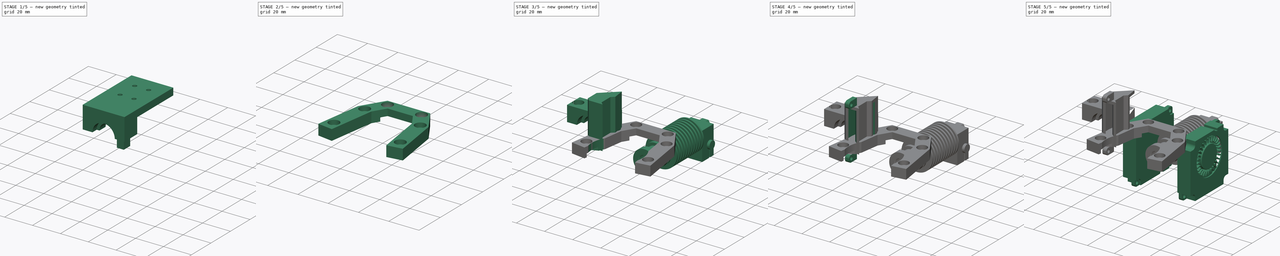
[diagram: build sequence overview — one tinted view per stage of 5, left to right]
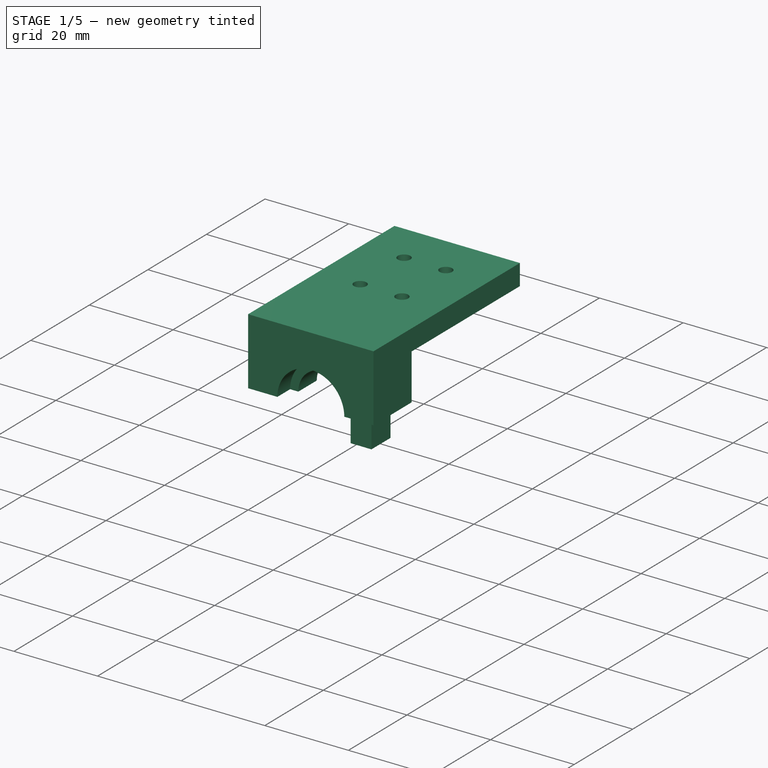
[diagram: stage 1 of 5 — iso view after this stage's code; geometry added in this stage tinted green]
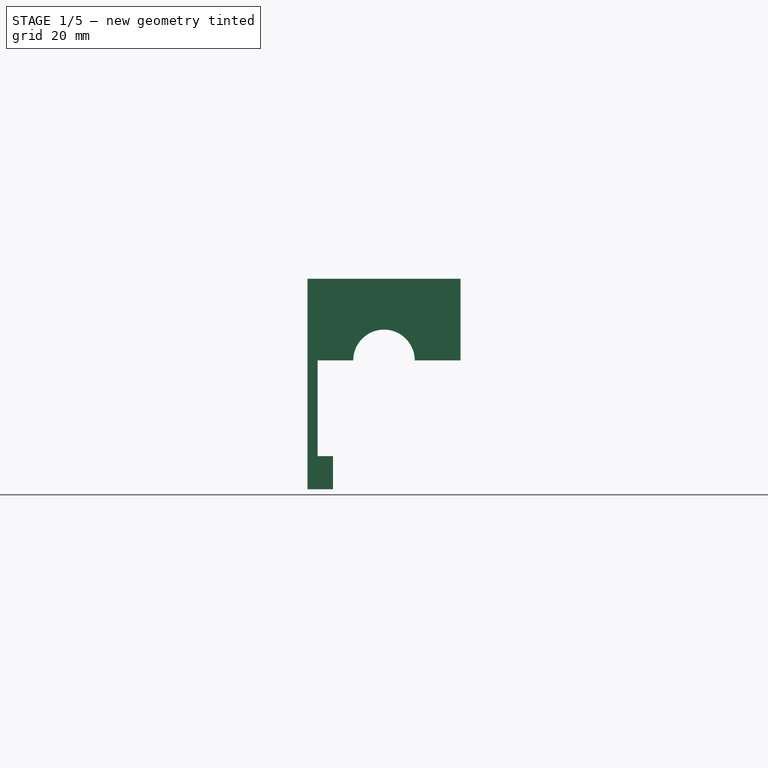
[diagram: stage 1 of 5 — front view after this stage's code; geometry added in this stage tinted green]
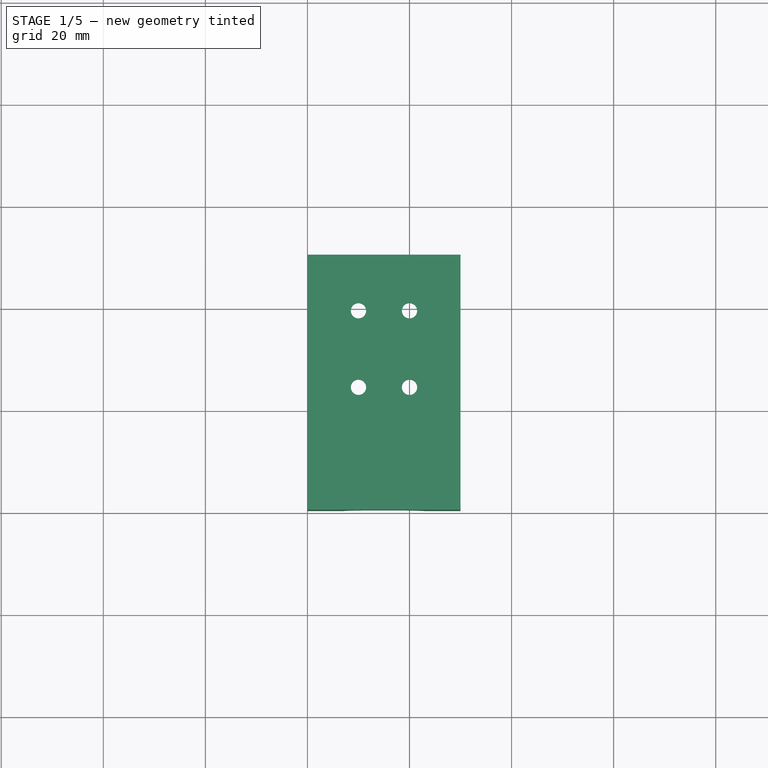
[diagram: stage 1 of 5 — top view after this stage's code; geometry added in this stage tinted green]
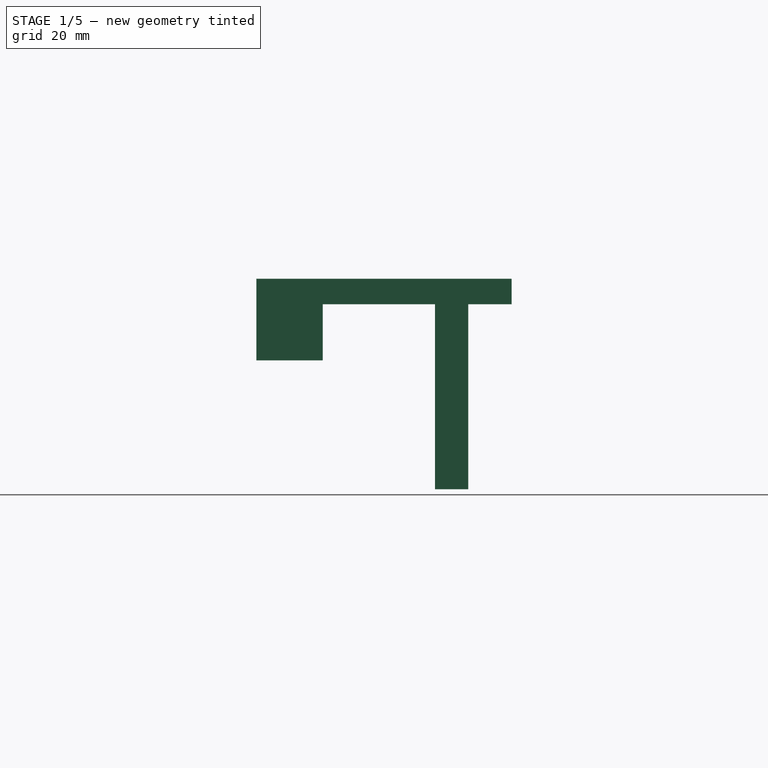
[diagram: stage 1 of 5 — right view after this stage's code; geometry added in this stage tinted green]
FCSTD DOCUMENT  (FreeCAD 0.21R33668 +26 (Git))
Label: Quasar
License: All rights reserved
LicenseURL: http://en.wikipedia.org/wiki/All_rights_reserved
objects: Sketcher::SketchObject×40, PartDesign::Pocket×20, PartDesign::Pad×18, Part::Feature×9, PartDesign::SubShapeBinder×7, PartDesign::Body×5, Part::Compound2×3, PartDesign::Groove×2, PartDesign::SubtractivePipe×2, PartDesign::Fillet×2
note: 149 computed .brp shape members not serialized (recipe doc carries the construction recipe); baked Part::Feature solids carry a one-line shape summary decoded from their .brp

FEATURE [Sketcher::SketchObject] Sketch
  FullyConstrained = true
  MapMode = 5
  Support = -> [XY_Plane]
  sketch-geometry (4):
    g0: LineSegment StartX=0 StartY=0 StartZ=0 EndX=30 EndY=0 EndZ=0
    g1: LineSegment StartX=30 StartY=0 StartZ=0 EndX=30 EndY=50 EndZ=0
    g2: LineSegment StartX=30 StartY=50 StartZ=0 EndX=0 EndY=50 EndZ=0
    g3: LineSegment StartX=0 StartY=50 StartZ=0 EndX=0 EndY=0 EndZ=0
  constraints (11):
    c: Coincident(g0,g1)
    c: Coincident(g1,g2)
    c: Coincident(g2,g3)
    c: Coincident(g3,g0)
    c: Horizontal(g0)
    c: Horizontal(g2)
    c: Vertical(g1)
    c: Vertical(g3)
    c: Coincident(g0,g-1)
    c: DistanceX(g2,g2) = 30
    c: DistanceY(g1,g1) = 50
FEATURE [PartDesign::Pad] Pad  label="backboard"
  Direction = (0,0,1)
  Length = 5
  Length2 = 10
  Profile = -> Sketch
  ReferenceAxis = -> Sketch [N_Axis]
  Type = 0
FEATURE [Sketcher::SketchObject] Sketch002
  ExternalGeometry = -> [Pad]
  FullyConstrained = true
  MapMode = 5
  Placement = pos=(0,0,0) rot=(1,0,0;3.14159rad)
  Support = -> [Pad]
  sketch-geometry (4):
    g0: LineSegment StartX=0 StartY=0 StartZ=0 EndX=30 EndY=0 EndZ=0
    g1: LineSegment StartX=30 StartY=0 StartZ=0 EndX=30 EndY=-13 EndZ=0
    g2: LineSegment StartX=30 StartY=-13 StartZ=0 EndX=0 EndY=-13 EndZ=0
    g3: LineSegment StartX=0 StartY=-13 StartZ=0 EndX=0 EndY=0 EndZ=0
  constraints (11):
    c: Coincident(g0,g1)
    c: Coincident(g1,g2)
    c: Coincident(g2,g3)
    c: Coincident(g3,g0)
    c: Horizontal(g0)
    c: Horizontal(g2)
    c: Vertical(g1)
    c: Vertical(g3)
    c: Coincident(g0,g-1)
    c: PointOnObject(g1,g-3)
    c: DistanceY(g1,g1) = 13
FEATURE [PartDesign::Pad] Pad001  label="thingy holder"
  BaseFeature = -> Pad
  Direction = (0,0,-1)
  Length = 11
  Length2 = 10
  Profile = -> Sketch002
  ReferenceAxis = -> Sketch002 [N_Axis]
  Type = 0
FEATURE [Sketcher::SketchObject] Sketch003
  ExternalGeometry = -> [Pad001]
  FullyConstrained = true
  MapMode = 5
  Placement = pos=(0,0,-11) rot=(1,0,0;3.14159rad)
  Support = -> [Pad001]
  sketch-geometry (10):
    g0: LineSegment StartX=7 StartY=-13 StartZ=0 EndX=7 EndY=-10.65 EndZ=0
    g1: LineSegment StartX=7 StartY=-10.65 StartZ=0 EndX=8.97 EndY=-10.65 EndZ=0
    g2: LineSegment StartX=8.97 StartY=-10.65 StartZ=0 EndX=8.97 EndY=-4.35 EndZ=0
    g3: LineSegment StartX=8.97 StartY=-4.35 StartZ=0 EndX=7 EndY=-4.35 EndZ=0
    g4: LineSegment StartX=7 StartY=-4.35 StartZ=0 EndX=7 EndY=1 EndZ=0
    g5: LineSegment StartX=7 StartY=1 StartZ=0 EndX=15 EndY=1 EndZ=0
    g6: LineSegment StartX=15 StartY=1 StartZ=0 EndX=15 EndY=-13 EndZ=0
    g7: LineSegment StartX=15 StartY=-13 StartZ=0 EndX=7 EndY=-13 EndZ=0
    g8: LineSegment StartX=15 StartY=1 StartZ=0 EndX=1.8e-15 EndY=-13 EndZ=0
    g9: LineSegment StartX=15 StartY=1 StartZ=0 EndX=30 EndY=-13 EndZ=0
  constraints (28):
    c: PointOnObject(g0,g-3)
    c: Vertical(g0)
    c: Coincident(g1,g0)
    c: Horizontal(g1)
    c: Coincident(g2,g1)
    c: Vertical(g2)
    c: Vertical(g4)
    c: Coincident(g5,g4)
    c: Horizontal(g5)
    c: Coincident(g6,g5)
    c: PointOnObject(g6,g-3)
    c: Coincident(g7,g6)
    c: Coincident(g7,g0)
    c: Vertical(g6)
    c: Coincident(g4,g3)
    c: Horizontal(g3)
    c: Equal(g3,g1)
    c: Coincident(g3,g2)
    c: DistanceY(g6,g6) = 14
    c: DistanceY(g2,g2) = 6.3
    c: DistanceX(g5,g5) = 8
    c: DistanceX(g3,g3) = 1.97
    c: DistanceY(g0,g0) = 2.35
    c: Coincident(g8,g5)
    c: Coincident(g8,g-3)
    c: Coincident(g9,g5)
    c: Coincident(g9,g-3)
    c: Equal(g9,g8)
FEATURE [PartDesign::Groove] Groove  label="thingy holder subtractive"
  Angle = 180
  Axis = (0,1,0)
  Base = (15,-1,-11)
  BaseFeature = -> Pad001
  Profile = -> Sketch003
  ReferenceAxis = -> Sketch003 [Edge7]
FEATURE [Sketcher::SketchObject] Sketch004
  ExternalGeometry = -> [Groove]
  FullyConstrained = true
  MapMode = 5
  Placement = pos=(0,0,-11) rot=(1,0,0;3.14159rad)
  Support = -> [Groove]
  sketch-geometry (4):
    g0: Circle CenterX=3.5 CenterY=-6.5 CenterZ=0 NormalX=0 NormalY=0 NormalZ=1 AngleXU=0 Radius=7.38241
    g1: Circle CenterX=26.5 CenterY=-6.5 CenterZ=0 NormalX=0 NormalY=0 NormalZ=1 AngleXU=0 Radius=7.38241
    g2: Circle CenterX=3.5 CenterY=-6.5 CenterZ=0 NormalX=0 NormalY=0 NormalZ=1 AngleXU=0 Radius=2.5
    g3: Circle CenterX=26.5 CenterY=-6.5 CenterZ=0 NormalX=0 NormalY=0 NormalZ=1 AngleXU=0 Radius=2.5
  constraints (10):
    c: PointOnObject(g-8,g0)
    c: PointOnObject(g-4,g0)
    c: PointOnObject(g-7,g1)
    c: PointOnObject(g-5,g1)
    c: Coincident(g2,g0)
    c: Coincident(g3,g1)
    c: Equal(g3,g2)
    c: Diameter(g3) = 5
    c: PointOnObject(g-6,g1)
    c: PointOnObject(g-9,g0)
FEATURE [PartDesign::Pocket] Pocket  label="heatset holes"
  BaseFeature = -> Groove
  Direction = (0,0,1)
  Length = 4
  Length2 = 5
  Profile = -> Sketch004
  ReferenceAxis = -> Sketch004 [N_Axis]
  Type = 0
FEATURE [Sketcher::SketchObject] Sketch005
  ExternalGeometry = -> [Pocket]
  FullyConstrained = true
  MapMode = 5
  Placement = pos=(0,0,0) rot=(1,0,0;3.14159rad)
  Support = -> [Pocket]
  sketch-geometry (12):
    g0: Circle CenterX=10 CenterY=-24 CenterZ=0 NormalX=0 NormalY=0 NormalZ=1 AngleXU=0 Radius=1.5
    g1: Circle CenterX=20 CenterY=-24 CenterZ=0 NormalX=0 NormalY=0 NormalZ=1 AngleXU=0 Radius=1.5
    g2: Circle CenterX=10 CenterY=-39 CenterZ=0 NormalX=0 NormalY=0 NormalZ=1 AngleXU=0 Radius=1.5
    g3: Circle CenterX=20 CenterY=-39 CenterZ=0 NormalX=0 NormalY=0 NormalZ=1 AngleXU=0 Radius=1.5
    g4: LineSegment StartX=10 StartY=-24 StartZ=0 EndX=20 EndY=-24 EndZ=0
    g5: LineSegment StartX=20 StartY=-24 StartZ=0 EndX=20 EndY=-39 EndZ=0
    g6: LineSegment StartX=20 StartY=-39 StartZ=0 EndX=10 EndY=-39 EndZ=0
    g7: LineSegment StartX=10 StartY=-39 StartZ=0 EndX=10 EndY=-24 EndZ=0
    g8: LineSegment StartX=0 StartY=-13 StartZ=0 EndX=10 EndY=-24 EndZ=0
    g9: LineSegment StartX=10 StartY=-39 StartZ=0 EndX=0 EndY=-50 EndZ=0
    g10: LineSegment StartX=20 StartY=-39 StartZ=0 EndX=30 EndY=-50 EndZ=0
    g11: LineSegment StartX=20 StartY=-24 StartZ=0 EndX=30 EndY=-13 EndZ=0
  constraints (28):
    c: Coincident(g4,g5)
    c: Coincident(g5,g6)
    c: Coincident(g6,g7)
    c: Coincident(g7,g4)
    c: Horizontal(g4)
    c: Horizontal(g6)
    c: Vertical(g5)
    c: Vertical(g7)
    c: Coincident(g4,g0)
    c: Coincident(g5,g3)
    c: Coincident(g1,g4)
    c: Coincident(g2,g6)
    c: Equal(g2,g3)
    c: Equal(g2,g1)
    c: Equal(g2,g0)
    c: Diameter(g2) = 3
    c: DistanceX(g4,g4) = 10
    c: DistanceY(g5,g5) = 15
    c: Coincident(g8,g-3)
    c: Coincident(g8,g0)
    c: Coincident(g9,g2)
    c: Coincident(g9,g-3)
    c: Coincident(g10,g3)
    c: Coincident(g10,g-4)
    c: Coincident(g11,g1)
    c: Coincident(g11,g-4)
    c: Equal(g11,g8)
    c: Equal(g8,g9)
FEATURE [PartDesign::Pocket] Pocket001  label="mgn9 mount"
  BaseFeature = -> Pocket
  Direction = (0,0,1)
  Length = 5
  Length2 = 5
  Profile = -> Sketch005
  ReferenceAxis = -> Sketch005 [N_Axis]
  Type = 0
FEATURE [Sketcher::SketchObject] Sketch006
  ExternalGeometry = -> [Pocket001]
  FullyConstrained = true
  MapMode = 5
  Placement = pos=(0,0,0) rot=(1,0,0;3.14159rad)
  Support = -> [Pocket001]
  sketch-geometry (4):
    g0: Circle CenterX=10 CenterY=-39 CenterZ=0 NormalX=0 NormalY=0 NormalZ=1 AngleXU=0 Radius=3.5
    g1: Circle CenterX=10 CenterY=-24 CenterZ=0 NormalX=0 NormalY=0 NormalZ=1 AngleXU=0 Radius=3.5
    g2: Circle CenterX=20 CenterY=-24 CenterZ=0 NormalX=0 NormalY=0 NormalZ=1 AngleXU=0 Radius=3.5
    g3: Circle CenterX=20 CenterY=-39 CenterZ=0 NormalX=0 NormalY=0 NormalZ=1 AngleXU=0 Radius=3.5
  constraints (8):
    c: Coincident(g0,g-6)
    c: Coincident(g1,g-3)
    c: Coincident(g2,g-4)
    c: Coincident(g3,g-5)
    c: Equal(g0,g3)
    c: Equal(g0,g2)
    c: Equal(g0,g1)
    c: Diameter(g0) = 7
FEATURE [PartDesign::Pocket] Pocket002  label="screw hole recession"
  BaseFeature = -> Pocket001
  Direction = (0,0,1)
  Length = 3
  Length2 = 5
  Profile = -> Sketch006
  ReferenceAxis = -> Sketch006 [N_Axis]
  Type = 0
FEATURE [Sketcher::SketchObject] Sketch008
  ExternalGeometry = -> [Pocket002]
  FullyConstrained = false
  MapMode = 5
  Placement = pos=(0,0,0) rot=(0.57735,-0.57735,-0.57735;2.0944rad)
  Support = -> [Pocket002]
  sketch-geometry (5):
    g0: Circle CenterX=-3.25 CenterY=1.75 CenterZ=0 NormalX=0 NormalY=0 NormalZ=1 AngleXU=0 Radius=1.75
    g1: LineSegment StartX=-4.74831 StartY=3.5 StartZ=0 EndX=-1.5 EndY=3.5 EndZ=0
    g2: LineSegment StartX=-1.5 StartY=3.5 StartZ=0 EndX=-1.5 EndY=1.45821 EndZ=0
    g3: LineSegment StartX=-1.5 StartY=1.45821 StartZ=0 EndX=-4.74831 EndY=1.45821 EndZ=0
    g4: LineSegment StartX=-4.74831 StartY=1.45821 StartZ=0 EndX=-4.74831 EndY=3.5 EndZ=0
  constraints (13):
    c: Coincident(g1,g2)
    c: Coincident(g2,g3)
    c: Coincident(g3,g4)
    c: Coincident(g4,g1)
    c: Horizontal(g1)
    c: Horizontal(g3)
    c: Vertical(g2)
    c: Vertical(g4)
    c: Tangent(g0,g1)
    c: Tangent(g0,g2)
    c: DistanceX(g1,g-3) = 1.5
    c: DistanceY(g1,g-3) = 1.5
    c: Diameter(g0) = 3.5
FEATURE [PartDesign::Pocket] Pocket003  label="4010 mount left"
  BaseFeature = -> Pocket002
  Direction = (1,0,0)
  Length = 3
  Length2 = 5
  Profile = -> Sketch008
  ReferenceAxis = -> Sketch008 [N_Axis]
  Type = 0
FEATURE [Sketcher::SketchObject] Sketch009
  ExternalGeometry = -> [Pocket003]
  FullyConstrained = true
  MapMode = 5
  Placement = pos=(0,0,0) rot=(1,0,0;3.14159rad)
  Support = -> [Pocket003]
  sketch-geometry (5):
    g0: LineSegment StartX=0 StartY=-41.5 StartZ=0 EndX=2 EndY=-41.5 EndZ=0
    g1: LineSegment StartX=2 StartY=-41.5 StartZ=0 EndX=2 EndY=-35 EndZ=0
    g2: LineSegment StartX=2 StartY=-35 StartZ=0 EndX=0 EndY=-35 EndZ=0
    g3: LineSegment StartX=0 StartY=-35 StartZ=0 EndX=0 EndY=-41.5 EndZ=0
    g4: Circle CenterX=1 CenterY=-38.25 CenterZ=0 NormalX=0 NormalY=0 NormalZ=1 AngleXU=0 Radius=3.40037
  constraints (15):
    c: Coincident(g0,g1)
    c: Coincident(g1,g2)
    c: Coincident(g2,g3)
    c: Coincident(g3,g0)
    c: Horizontal(g0)
    c: Horizontal(g2)
    c: Vertical(g1)
    c: Vertical(g3)
    c: DistanceX(g2,g2) = 2
    c: DistanceY(g1,g1) = 6.5
    c: PointOnObject(g2,g4)
    c: PointOnObject(g1,g4)
    c: PointOnObject(g0,g4)
    c: PointOnObject(g2,g-2)
    c: DistanceY(g4,g-4) = 35
FEATURE [PartDesign::Pad] Pad002  label="4010 mount left pad"
  BaseFeature = -> Pocket003
  Direction = (0,0,-1)
  Length = 36.25
  Length2 = 10
  Profile = -> Sketch009
  ReferenceAxis = -> Sketch009 [N_Axis]
  Type = 0
FEATURE [Sketcher::SketchObject] Sketch010
  ExternalGeometry = -> [Pad002]
  FullyConstrained = true
  MapMode = 5
  Placement = pos=(2,0,0) rot=(0.57735,0.57735,0.57735;2.0944rad)
  Support = -> [Pad002]
  sketch-geometry (4):
    g0: LineSegment StartX=35 StartY=-36.25 StartZ=0 EndX=41.5 EndY=-36.25 EndZ=0
    g1: LineSegment StartX=41.5 StartY=-36.25 StartZ=0 EndX=41.5 EndY=-29.75 EndZ=0
    g2: LineSegment StartX=41.5 StartY=-29.75 StartZ=0 EndX=35 EndY=-29.75 EndZ=0
    g3: LineSegment StartX=35 StartY=-29.75 StartZ=0 EndX=35 EndY=-36.25 EndZ=0
  constraints (11):
    c: Coincident(g0,g1)
    c: Coincident(g1,g2)
    c: Coincident(g2,g3)
    c: Coincident(g3,g0)
    c: Horizontal(g0)
    c: Horizontal(g2)
    c: Vertical(g1)
    c: Vertical(g3)
    c: Coincident(g0,g-3)
    c: PointOnObject(g1,g-4)
    c: Equal(g2,g1)
FEATURE [PartDesign::Pad] Pad003  label="4010 mount left screw pad"
  BaseFeature = -> Pad002
  Direction = (1,0,0)
  Length = 3
  Length2 = 10
  Profile = -> Sketch010
  ReferenceAxis = -> Sketch010 [N_Axis]
  Type = 0
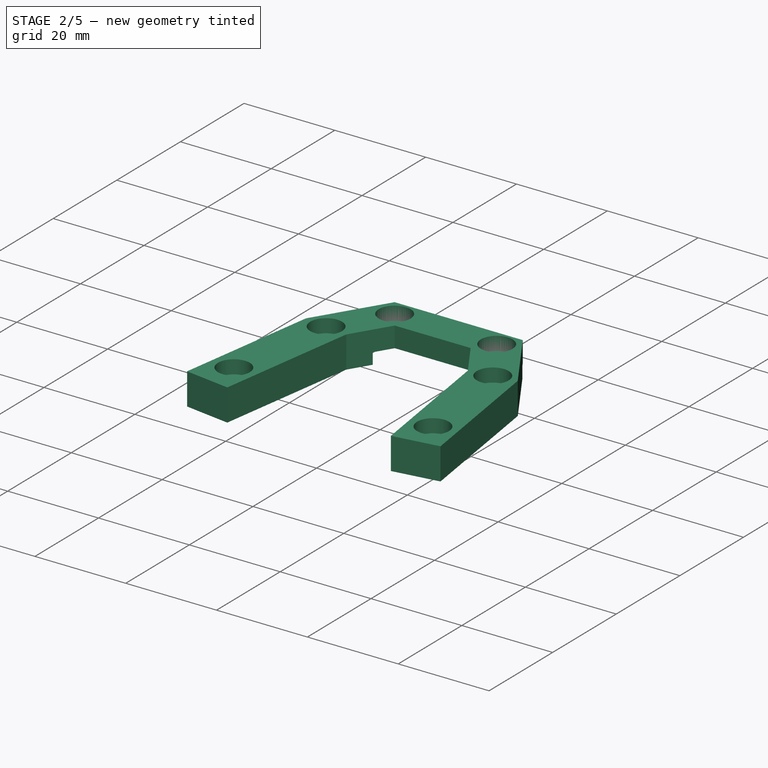
[diagram: stage 2 of 5 — iso view after this stage's code; geometry added in this stage tinted green]
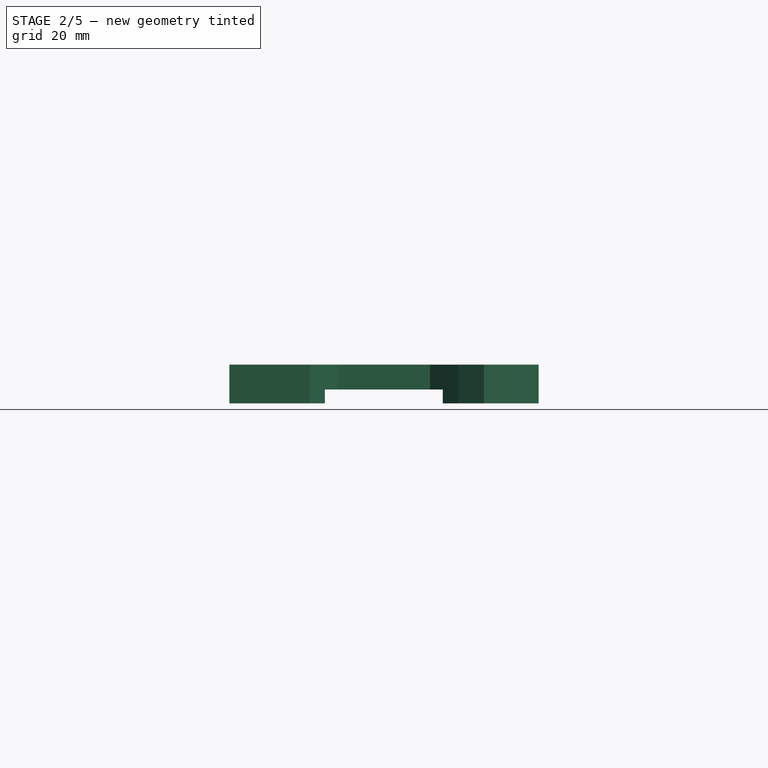
[diagram: stage 2 of 5 — front view after this stage's code; geometry added in this stage tinted green]
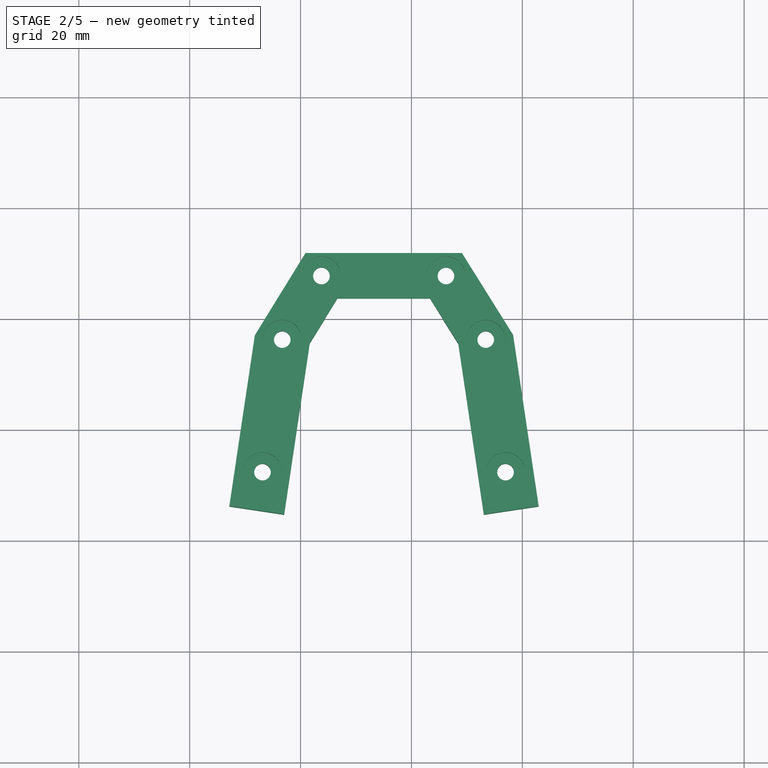
[diagram: stage 2 of 5 — top view after this stage's code; geometry added in this stage tinted green]
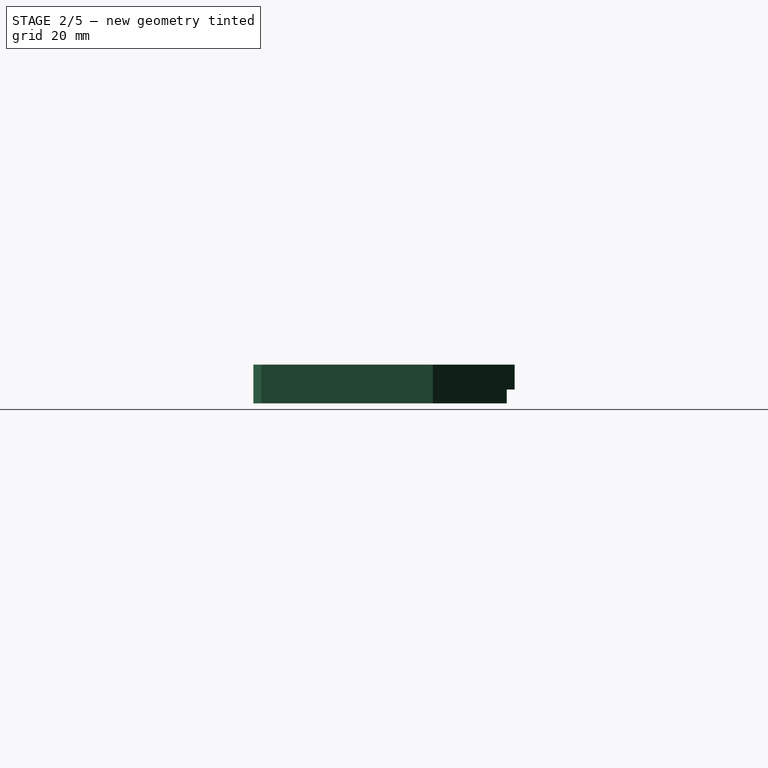
[diagram: stage 2 of 5 — right view after this stage's code; geometry added in this stage tinted green]
FEATURE [Sketcher::SketchObject] Sketch011
  ExternalGeometry = -> [Pad003]
  FullyConstrained = true
  MapMode = 5
  Placement = pos=(0,0,0) rot=(0.57735,-0.57735,-0.57735;2.0944rad)
  Support = -> [Pad003]
  sketch-geometry (2):
    g0: Circle CenterX=-38.25 CenterY=-33 CenterZ=0 NormalX=0 NormalY=0 NormalZ=1 AngleXU=0 Radius=4.59619
    g1: Circle CenterX=-38.25 CenterY=-33 CenterZ=0 NormalX=0 NormalY=0 NormalZ=1 AngleXU=0 Radius=1.75
  constraints (5):
    c: PointOnObject(g-3,g0)
    c: PointOnObject(g-4,g0)
    c: PointOnObject(g-4,g0)
    c: Coincident(g1,g0)
    c: Diameter(g1) = 3.5
FEATURE [PartDesign::Pocket] Pocket004  label="4010 mount left001"
  BaseFeature = -> Pad003
  Direction = (1,0,0)
  Length = 3
  Length2 = 5
  Profile = -> Sketch011
  ReferenceAxis = -> Sketch011 [N_Axis]
  Type = 0
FEATURE [Sketcher::SketchObject] Sketch012
  ExternalGeometry = -> [Pocket004,Sketch009]
  FullyConstrained = true
  MapMode = 5
  Placement = pos=(0,0,0) rot=(1,0,0;3.14159rad)
  Support = -> [Pocket004]
  sketch-geometry (4):
    g0: LineSegment StartX=30 StartY=-35 StartZ=0 EndX=28 EndY=-35 EndZ=0
    g1: LineSegment StartX=28 StartY=-35 StartZ=0 EndX=28 EndY=-41.5 EndZ=0
    g2: LineSegment StartX=28 StartY=-41.5 StartZ=0 EndX=30 EndY=-41.5 EndZ=0
    g3: LineSegment StartX=30 StartY=-41.5 StartZ=0 EndX=30 EndY=-35 EndZ=0
  constraints (12):
    c: Coincident(g0,g1)
    c: Coincident(g1,g2)
    c: Coincident(g2,g3)
    c: Coincident(g3,g0)
    c: Horizontal(g0)
    c: Horizontal(g2)
    c: Vertical(g1)
    c: Vertical(g3)
    c: PointOnObject(g0,g-3)
    c: Horizontal(g1,g-4)
    c: Equal(g1,g-4)
    c: Equal(g-5,g2)
FEATURE [PartDesign::Pad] Pad004  label="Pad004 (i forgot what it is)"
  BaseFeature = -> Pocket004
  Direction = (0,0,-1)
  Length = 36.25
  Length2 = 10
  Profile = -> Sketch012
  ReferenceAxis = -> Sketch012 [N_Axis]
  Type = 0
FEATURE [Sketcher::SketchObject] Sketch013
  ExternalGeometry = -> [Pad004]
  FullyConstrained = true
  MapMode = 5
  Placement = pos=(28,0,0) rot=(0.57735,-0.57735,-0.57735;2.0944rad)
  Support = -> [Pad004]
  sketch-geometry (4):
    g0: LineSegment StartX=-41.5 StartY=-29.75 StartZ=0 EndX=-35 EndY=-29.75 EndZ=0
    g1: LineSegment StartX=-35 StartY=-29.75 StartZ=0 EndX=-35 EndY=-36.25 EndZ=0
    g2: LineSegment StartX=-35 StartY=-36.25 StartZ=0 EndX=-41.5 EndY=-36.25 EndZ=0
    g3: LineSegment StartX=-41.5 StartY=-36.25 StartZ=0 EndX=-41.5 EndY=-29.75 EndZ=0
  constraints (10):
    c: Coincident(g0,g1)
    c: Coincident(g1,g2)
    c: Coincident(g2,g3)
    c: Coincident(g3,g0)
    c: Horizontal(g0)
    c: Horizontal(g2)
    c: Vertical(g1)
    c: Vertical(g3)
    c: Coincident(g0,g-4)
    c: Coincident(g1,g-3)
FEATURE [PartDesign::Pad] Pad005
  BaseFeature = -> Pad004
  Direction = (-1,0,0)
  Length = 3
  Length2 = 10
  Profile = -> Sketch013
  ReferenceAxis = -> Sketch013 [N_Axis]
  Type = 0
FEATURE [Sketcher::SketchObject] Sketch014
  ExternalGeometry = -> [Pad005]
  FullyConstrained = true
  MapMode = 5
  Placement = pos=(30,0,0) rot=(0.57735,0.57735,0.57735;2.0944rad)
  Support = -> [Pad005]
  sketch-geometry (11):
    g0: Circle CenterX=38.25 CenterY=-33 CenterZ=0 NormalX=0 NormalY=0 NormalZ=1 AngleXU=0 Radius=4.59619
    g1: Circle CenterX=38.25 CenterY=-33 CenterZ=0 NormalX=0 NormalY=0 NormalZ=1 AngleXU=0 Radius=1.75
    g2: Circle CenterX=3.25 CenterY=1.75 CenterZ=0 NormalX=0 NormalY=0 NormalZ=1 AngleXU=0 Radius=1.75
    g3: LineSegment StartX=1.5 StartY=3.5 StartZ=0 EndX=5 EndY=3.5 EndZ=0
    g4: LineSegment StartX=5 StartY=3.5 StartZ=0 EndX=5 EndY=-4e-16 EndZ=0
    g5: LineSegment StartX=5 StartY=-3e-16 StartZ=0 EndX=1.5 EndY=-3e-16 EndZ=0
    g6: LineSegment StartX=1.5 StartY=-3e-16 StartZ=0 EndX=1.5 EndY=3.5 EndZ=0
    g7: LineSegment StartX=0 StartY=5 StartZ=0 EndX=1.5 EndY=5 EndZ=0
    g8: LineSegment StartX=1.5 StartY=5 StartZ=0 EndX=1.5 EndY=3.5 EndZ=0
    g9: LineSegment StartX=1.5 StartY=3.5 StartZ=0 EndX=0 EndY=3.5 EndZ=0
    g10: LineSegment StartX=0 StartY=3.5 StartZ=0 EndX=0 EndY=5 EndZ=0
  constraints (30):
    c: PointOnObject(g-3,g0)
    c: PointOnObject(g-4,g0)
    c: PointOnObject(g-4,g0)
    c: Coincident(g1,g0)
    c: Diameter(g1) = 3.5
    c: Coincident(g3,g4)
    c: Coincident(g4,g5)
    c: Coincident(g5,g6)
    c: Coincident(g6,g3)
    c: Horizontal(g3)
    c: Horizontal(g5)
    c: Vertical(g4)
    c: Vertical(g6)
    c: Tangent(g2,g4)
    c: Tangent(g3,g2)
    c: Tangent(g2,g6)
    c: Tangent(g2,g5)
    c: Coincident(g7,g8)
    c: Coincident(g8,g9)
    c: Coincident(g9,g10)
    c: Coincident(g10,g7)
    c: Horizontal(g7)
    c: Horizontal(g9)
    c: Vertical(g8)
    c: Vertical(g10)
    c: Coincident(g7,g-5)
    c: Coincident(g8,g3)
    c: DistanceY(g8,g8) = 1.5
    c: Equal(g8,g9)
    c: Diameter(g2) = 3.5
FEATURE [PartDesign::Pocket] Pocket005
  BaseFeature = -> Pad005
  Direction = (-1,0,0)
  Length = 3
  Length2 = 5
  Profile = -> Sketch014
  ReferenceAxis = -> Sketch014 [N_Axis]
  Type = 0
FEATURE [Sketcher::SketchObject] Sketch015
  ExternalGeometry = -> [Pocket005]
  FullyConstrained = true
  MapMode = 5
  Placement = pos=(0,0,5) rot=(0,0,1;0rad)
  Support = -> [Pocket005]
  sketch-geometry (11):
    g0: LineSegment StartX=2 StartY=40.75 StartZ=0 EndX=4 EndY=40.75 EndZ=0
    g1: LineSegment StartX=4 StartY=40.75 StartZ=0 EndX=4 EndY=22.25 EndZ=0
    g2: LineSegment StartX=4 StartY=22.25 StartZ=0 EndX=2 EndY=22.25 EndZ=0
    g3: LineSegment StartX=2 StartY=22.25 StartZ=0 EndX=2 EndY=40.75 EndZ=0
    g4: LineSegment StartX=26 StartY=40.75 StartZ=0 EndX=28 EndY=40.75 EndZ=0
    g5: LineSegment StartX=28 StartY=40.75 StartZ=0 EndX=28 EndY=22.25 EndZ=0
    g6: LineSegment StartX=28 StartY=22.25 StartZ=0 EndX=26 EndY=22.25 EndZ=0
    g7: LineSegment StartX=26 StartY=22.25 StartZ=0 EndX=26 EndY=40.75 EndZ=0
    g8: LineSegment StartX=10 StartY=39 StartZ=0 EndX=4 EndY=40.75 EndZ=0
    g9: LineSegment StartX=20 StartY=39 StartZ=0 EndX=26 EndY=40.75 EndZ=0
    g10: LineSegment StartX=10 StartY=24 StartZ=0 EndX=4 EndY=22.25 EndZ=0
  constraints (30):
    c: Coincident(g0,g1)
    c: Coincident(g1,g2)
    c: Coincident(g2,g3)
    c: Coincident(g3,g0)
    c: Horizontal(g0)
    c: Horizontal(g2)
    c: Vertical(g1)
    c: Vertical(g3)
    c: Coincident(g4,g5)
    c: Coincident(g5,g6)
    c: Coincident(g6,g7)
    c: Coincident(g7,g4)
    c: Horizontal(g4)
    c: Horizontal(g6)
    c: Vertical(g5)
    c: Vertical(g7)
    c: DistanceX(g0,g0) = 2
    c: Equal(g2,g4)
    c: DistanceY(g1,g1) = 18.5
    c: Equal(g1,g7)
    c: Horizontal(g0,g4)
    c: Coincident(g8,g-4)
    c: Coincident(g8,g0)
    c: Coincident(g9,g-5)
    c: Coincident(g9,g4)
    c: Equal(g9,g8)
    c: DistanceX(g4,g-3) = 2
    c: Coincident(g10,g-6)
    c: Coincident(g10,g1)
    c: Equal(g10,g8)
FEATURE [PartDesign::Pocket] Pocket006  label="belt pockets"
  BaseFeature = -> Pocket005
  Direction = (0,0,-1)
  Length = 5
  Length2 = 5
  Profile = -> Sketch015
  ReferenceAxis = -> Sketch015 [N_Axis]
  Type = 0
FEATURE [Sketcher::SketchObject] Sketch034
  ExternalGeometry = -> [Pocket006]
  FullyConstrained = true
  MapMode = 5
  Placement = pos=(0,0,5) rot=(0,0,1;0rad)
  Support = -> [Pocket006]
  sketch-geometry (12):
    g0: Circle CenterX=3.76777 CenterY=7.76777 CenterZ=0 NormalX=0 NormalY=0 NormalZ=1 AngleXU=0 Radius=2.5
    g1: Circle CenterX=26.2322 CenterY=7.76777 CenterZ=0 NormalX=0 NormalY=0 NormalZ=1 AngleXU=0 Radius=2.5
    g2: LineSegment StartX=2 StartY=9.53553 StartZ=0 EndX=2 EndY=6 EndZ=0
    g3: LineSegment StartX=2 StartY=6 StartZ=0 EndX=5.53553 EndY=6 EndZ=0
    g4: LineSegment StartX=5.53553 StartY=6 StartZ=0 EndX=5.53553 EndY=9.53553 EndZ=0
    g5: LineSegment StartX=5.53553 StartY=9.53553 StartZ=0 EndX=2 EndY=9.53553 EndZ=0
    g6: GeomPoint X=3.76777 Y=7.76777 Z=0
    g7: LineSegment StartX=24.4645 StartY=6 StartZ=0 EndX=24.4645 EndY=9.53553 EndZ=0
    g8: LineSegment StartX=24.4645 StartY=9.53553 StartZ=0 EndX=28 EndY=9.53553 EndZ=0
    g9: LineSegment StartX=28 StartY=9.53553 StartZ=0 EndX=28 EndY=6 EndZ=0
    g10: LineSegment StartX=28 StartY=6 StartZ=0 EndX=24.4645 EndY=6 EndZ=0
    g11: GeomPoint X=26.2322 Y=7.76777 Z=0
  constraints (30):
    c: Coincident(g2,g3)
    c: Coincident(g3,g4)
    c: Coincident(g4,g5)
    c: Coincident(g5,g2)
    c: Horizontal(g3)
    c: Horizontal(g5)
    c: Vertical(g2)
    c: Vertical(g4)
    c: Symmetric(g3,g2,g6)
    c: Coincident(g6,g0)
    c: PointOnObject(g3,g0)
    c: Coincident(g7,g8)
    c: Coincident(g8,g9)
    c: Coincident(g9,g10)
    c: Coincident(g10,g7)
    c: Horizontal(g8)
    c: Horizontal(g10)
    c: Vertical(g7)
    c: Vertical(g9)
    c: Symmetric(g8,g7,g11)
    c: Coincident(g11,g1)
    c: PointOnObject(g8,g1)
    c: Equal(g8,g7)
    c: Equal(g5,g4)
    c: Equal(g0,g1)
    c: Diameter(g0) = 5
    c: DistanceY(g-3,g2) = 6
    c: DistanceX(g-3,g2) = 2
    c: DistanceX(g9,g-3) = 2
    c: DistanceY(g-3,g9) = 6
FEATURE [PartDesign::Pocket] Pocket013
  BaseFeature = -> Pocket006
  Direction = (0,0,-1)
  Length = 3
  Length2 = 5
  Profile = -> Sketch034
  ReferenceAxis = -> Sketch034 [N_Axis]
  Type = 0
FEATURE [PartDesign::Body] Body001  label="v6-holder"
  Group = -> [Sketch016,Pad006,Sketch017,Groove001,Sketch018,Pocket007,Sketch019,Pocket008,Binder,Sketch041,Pocket017]
  Origin = -> Origin001
  Placement = pos=(-10,0,-11) rot=(0,1,0;3.14159rad)
  Tip = -> Pocket017
FEATURE [Part::Feature] Part__Feature059  label="Sherpa Mini"
  Placement = pos=(10.75,-13.5,-4.5) rot=(-1,0,0;3.14159rad)
  shape: bbox 51.3 x 54.55 x 45.96 mm, 1362 faces (baked)
FEATURE [PartDesign::SubShapeBinder] Binder002
  BindCopyOnChange = 0
  BindMode = 0
  ClaimChildren = false
  Context = -> Body005 [Binder002.]
  Fuse = false
  MakeFace = true
  OffsetFill = false
  OffsetIntersection = false
  OffsetJoinType = 0
  OffsetOpenResult = false
  PartialLoad = false
  Relative = true
  Support = -> [Body[Pocket013.Edge30,Pocket013.Edge29],Part__Feature059[Edge1518,Edge1523,Edge110,Edge111,Edge122,Edge123]]
  _Version = 2
FEATURE [PartDesign::SubShapeBinder] Binder003
  BindCopyOnChange = 0
  BindMode = 0
  ClaimChildren = false
  Context = -> Body005 [Binder003.]
  Fuse = false
  MakeFace = true
  OffsetFill = false
  OffsetIntersection = false
  OffsetJoinType = 0
  OffsetOpenResult = false
  PartialLoad = false
  Relative = true
  Support = -> [Body[Pocket013.Edge30,Pocket013.Edge29]]
  _Version = 2
FEATURE [Sketcher::SketchObject] Sketch042
  ExternalGeometry = -> [Binder002]
  FullyConstrained = false
  MapMode = 5
  Support = -> [XY_Plane025]
  sketch-geometry (30):
    g0: LineSegment StartX=3.76777 StartY=7.76777 StartZ=0 EndX=-3.3 EndY=-3.7 EndZ=0
    g1: LineSegment StartX=-6.87031 StartY=-27.6093 StartZ=0 EndX=-3.3 EndY=-3.7 EndZ=0
    g2: LineSegment StartX=36.9703 StartY=-27.6093 StartZ=0 EndX=33.4 EndY=-3.7 EndZ=0
    g3: LineSegment StartX=33.4 StartY=-3.7 StartZ=0 EndX=26.2322 EndY=7.76777 EndZ=0
    g4: LineSegment StartX=3.76777 StartY=7.76777 StartZ=0 EndX=26.2322 EndY=7.76777 EndZ=0
    g5: LineSegment StartX=-12.8493 StartY=-33.7941 StartZ=0 EndX=-8.24521 EndY=-2.96181 EndZ=0
    g6: LineSegment StartX=-8.24521 StartY=-2.96181 StartZ=0 EndX=0.885766 EndY=11.8536 EndZ=0
    g7: LineSegment StartX=0.885766 StartY=11.8536 StartZ=0 EndX=29.1142 EndY=11.8536 EndZ=0
    g8: LineSegment StartX=29.1142 StartY=11.8536 StartZ=0 EndX=38.3355 EndY=-2.89961 EndZ=0
    g9: LineSegment StartX=38.3355 StartY=-2.89961 StartZ=0 EndX=42.949 EndY=-33.7944 EndZ=0
    g10: LineSegment StartX=42.949 StartY=-33.7944 StartZ=0 EndX=33.0594 EndY=-35.2712 EndZ=0
    g11: LineSegment StartX=33.0594 StartY=-35.2712 StartZ=0 EndX=28.4645 EndY=-4.50039 EndZ=0
    g12: LineSegment StartX=28.4645 StartY=-4.50039 StartZ=0 EndX=23.3502 EndY=3.68193 EndZ=0
    g13: LineSegment StartX=23.3502 StartY=3.68193 StartZ=0 EndX=6.64977 EndY=3.68193 EndZ=0
    g14: LineSegment StartX=6.64977 StartY=3.68193 StartZ=0 EndX=1.64521 EndY=-4.43819 EndZ=0
    g15: LineSegment StartX=1.64521 StartY=-4.43819 StartZ=0 EndX=-2.95897 EndY=-35.271 EndZ=0
    g16: LineSegment StartX=-12.8493 StartY=-33.7941 StartZ=0 EndX=-2.95897 EndY=-35.271 EndZ=0
    g17: LineSegment StartX=0.885766 StartY=11.8536 StartZ=0 EndX=6.64977 EndY=3.68193 EndZ=0
    g18: LineSegment StartX=-8.24521 StartY=-2.96181 StartZ=0 EndX=1.64521 EndY=-4.43819 EndZ=0
    g19: LineSegment StartX=23.3502 StartY=3.68193 StartZ=0 EndX=29.1142 EndY=11.8536 EndZ=0
    g20: LineSegment StartX=28.4645 StartY=-4.50039 StartZ=0 EndX=38.3355 EndY=-2.89961 EndZ=0
    g21: LineSegment StartX=15.563 StartY=11.8536 StartZ=0 EndX=15.563 EndY=3.68193 EndZ=0
    g22: LineSegment StartX=-8.24521 StartY=-2.96181 StartZ=0 EndX=-6.23544 EndY=-6.43146 EndZ=0
    g23: LineSegment StartX=-6.23544 StartY=-6.43146 StartZ=0 EndX=-3.3 EndY=-3.7 EndZ=0
    g24: LineSegment StartX=-3.3 StartY=-3.7 StartZ=0 EndX=-1.29023 EndY=-7.16965 EndZ=0
    g25: LineSegment StartX=-1.29023 StartY=-7.16965 StartZ=0 EndX=1.64521 EndY=-4.43819 EndZ=0
    g26: LineSegment StartX=-8.7082 StartY=-6.06234 StartZ=0 EndX=1.18221 EndY=-7.53873 EndZ=0
    g27: LineSegment StartX=-6.87031 StartY=-27.6093 StartZ=0 EndX=-2.95897 EndY=-35.271 EndZ=0
    g28: LineSegment StartX=36.9703 StartY=-27.6093 StartZ=0 EndX=33.0594 EndY=-35.2712 EndZ=0
    g29: LineSegment StartX=-6.87031 StartY=-27.6093 StartZ=0 EndX=-7.90414 EndY=-34.5325 EndZ=0
  constraints (75):
    c: Coincident(g0,g-3)
    c: Coincident(g0,g-4)
    c: Coincident(g1,g-5)
    c: Coincident(g1,g0)
    c: Coincident(g2,g-7)
    c: Coincident(g2,g-6)
    c: Coincident(g3,g2)
    c: Coincident(g3,g-8)
    c: Coincident(g4,g0)
    c: Coincident(g4,g3)
    c: Coincident(g7,g6)
    c: Coincident(g5,g6)
    c: Coincident(g8,g7)
    c: Coincident(g9,g8)
    c: Coincident(g10,g9)
    c: Coincident(g11,g10)
    c: Coincident(g12,g11)
    c: Coincident(g13,g12)
    c: Horizontal(g13)
    c: Coincident(g14,g13)
    c: Coincident(g15,g14)
    c: Coincident(g16,g5)
    c: Coincident(g16,g15)
    c: Coincident(g17,g6)
    c: Coincident(g17,g13)
    c: Coincident(g18,g5)
    c: Coincident(g18,g14)
    c: Parallel(g14,g6)
    c: Parallel(g6,g0)
    c: Parallel(g3,g12)
    c: Parallel(g12,g8)
    c: Parallel(g4,g7)
    c: Parallel(g2,g9)
    c: Parallel(g9,g11)
    c: Parallel(g1,g5)
    c: Parallel(g5,g15)
    c: Perpendicular(g15,g16)
    c: Perpendicular(g11,g10)
    c: Coincident(g19,g12)
    c: Coincident(g19,g7)
    c: Coincident(g20,g11)
    c: Coincident(g20,g8)
    c: PointOnObject(g2,g20)
    c: PointOnObject(g3,g19)
    c: PointOnObject(g0,g17)
    c: PointOnObject(g0,g18)
    c: Equal(g17,g19)
    c: Distance(g17) = 10
    c: PointOnObject(g21,g7)
    c: PointOnObject(g21,g13)
    c: Vertical(g21)
    c: Coincident(g22,g5)
    c: Coincident(g23,g0)
    c: Coincident(g24,g0)
    c: Coincident(g25,g24)
    c: Coincident(g25,g14)
    c: Coincident(g23,g22)
    c: PointOnObject(g26,g5)
    c: PointOnObject(g26,g15)
    c: PointOnObject(g24,g26)
    c: PointOnObject(g22,g26)
    c: Equal(g22,g23)
    c: Equal(g23,g24)
    c: Equal(g24,g25)
    c: Equal(g18,g20)
    c: Distance(g18) = 10
    c: Coincident(g27,g1)
    c: Coincident(g27,g15)
    c: Coincident(g28,g2)
    c: Coincident(g28,g10)
    c: Coincident(g29,g1)
    c: PointOnObject(g29,g16)
    c: Distance(g29) = 7
    c: Equal(g27,g28)
    c: Block(g17)
FEATURE [PartDesign::Pad] Pad020
  Direction = (0,0,1)
  Length = 7
  Length2 = 10
  Profile = -> Sketch042
  ReferenceAxis = -> Sketch042 [N_Axis]
  Type = 0
FEATURE [PartDesign::SubShapeBinder] Binder004
  BindCopyOnChange = 0
  BindMode = 0
  ClaimChildren = false
  Context = -> Body005 [Binder004.]
  Fuse = false
  MakeFace = true
  OffsetFill = false
  OffsetIntersection = false
  OffsetJoinType = 0
  OffsetOpenResult = false
  PartialLoad = false
  Relative = true
  Support = -> [Body[Pocket013.Edge4]]
  _Version = 2
FEATURE [PartDesign::SubShapeBinder] Binder005
  BindCopyOnChange = 0
  BindMode = 0
  ClaimChildren = false
  Context = -> Body005 [Binder005.]
  Fuse = false
  MakeFace = true
  OffsetFill = false
  OffsetIntersection = false
  OffsetJoinType = 0
  OffsetOpenResult = false
  PartialLoad = false
  Relative = true
  Support = -> [Body[Pocket013.Face5]]
  _Version = 2
FEATURE [Sketcher::SketchObject] Sketch043
  ExternalGeometry = -> [Pad020,Binder005,Binder004]
  FullyConstrained = true
  MapMode = 5
  Placement = pos=(0,0,0) rot=(1,0,0;3.14159rad)
  Support = -> [Pad020]
  sketch-geometry (4):
    g0: LineSegment StartX=30 StartY=0 StartZ=0 EndX=0 EndY=0 EndZ=0
    g1: LineSegment StartX=0 StartY=0 StartZ=0 EndX=0 EndY=-11.8536 EndZ=0
    g2: LineSegment StartX=0 StartY=-11.8536 StartZ=0 EndX=30 EndY=-11.8536 EndZ=0
    g3: LineSegment StartX=30 StartY=-11.8536 StartZ=0 EndX=30 EndY=0 EndZ=0
  constraints (10):
    c: Coincident(g0,g1)
    c: Coincident(g1,g2)
    c: Coincident(g2,g3)
    c: Coincident(g3,g0)
    c: Horizontal(g2)
    c: Vertical(g1)
    c: Vertical(g3)
    c: Coincident(g0,g-5)
    c: PointOnObject(g-3,g2)
    c: Coincident(g0,g-5)
FEATURE [PartDesign::Pocket] Pocket018
  BaseFeature = -> Pad020
  Direction = (0,0,1)
  Length = 2.5
  Length2 = 5
  Profile = -> Sketch043
  ReferenceAxis = -> Sketch043 [N_Axis]
  Type = 0
FEATURE [Sketcher::SketchObject] Sketch044
  ExternalGeometry = -> [Binder003,Binder002]
  FullyConstrained = true
  MapMode = 5
  Placement = pos=(0,0,7) rot=(0,0,1;0rad)
  Support = -> [Pocket018]
  sketch-geometry (6):
    g0: Circle CenterX=3.76777 CenterY=7.76777 CenterZ=0 NormalX=0 NormalY=0 NormalZ=1 AngleXU=0 Radius=1.5
    g1: Circle CenterX=26.2322 CenterY=7.76777 CenterZ=0 NormalX=0 NormalY=0 NormalZ=1 AngleXU=0 Radius=1.5
    g2: Circle CenterX=-6.87031 CenterY=-27.6093 CenterZ=0 NormalX=0 NormalY=0 NormalZ=1 AngleXU=0 Radius=1.5
    g3: Circle CenterX=36.9703 CenterY=-27.6093 CenterZ=0 NormalX=0 NormalY=0 NormalZ=1 AngleXU=0 Radius=1.5
    g4: Circle CenterX=33.4 CenterY=-3.7 CenterZ=0 NormalX=0 NormalY=0 NormalZ=1 AngleXU=0 Radius=1.5
    g5: Circle CenterX=-3.3 CenterY=-3.7 CenterZ=0 NormalX=0 NormalY=0 NormalZ=1 AngleXU=0 Radius=1.5
  constraints (12):
    c: Coincident(g0,g-3)
    c: Coincident(g1,g-4)
    c: Equal(g1,g0)
    c: Diameter(g1) = 3
    c: Coincident(g2,g-6)
    c: Coincident(g3,g-7)
    c: PointOnObject(g-7,g3)
    c: Coincident(g4,g-8)
    c: PointOnObject(g-6,g2)
    c: Coincident(g5,g-5)
    c: Equal(g5,g4)
    c: Diameter(g5) = 3
FEATURE [PartDesign::Pocket] Pocket019
  BaseFeature = -> Pocket018
  Direction = (0,0,-1)
  Length = 10
  Length2 = 5
  Profile = -> Sketch044
  ReferenceAxis = -> Sketch044 [N_Axis]
  Type = 0
FEATURE [Sketcher::SketchObject] Sketch045
  ExternalGeometry = -> [Pocket019]
  FullyConstrained = true
  MapMode = 5
  Placement = pos=(0,0,7) rot=(0,0,1;0rad)
  Support = -> [Pocket019]
  sketch-geometry (6):
    g0: Circle CenterX=36.9703 CenterY=-27.6093 CenterZ=0 NormalX=0 NormalY=0 NormalZ=1 AngleXU=0 Radius=3.5
    g1: Circle CenterX=33.4 CenterY=-3.7 CenterZ=0 NormalX=0 NormalY=0 NormalZ=1 AngleXU=0 Radius=3.5
    g2: Circle CenterX=26.2322 CenterY=7.76777 CenterZ=0 NormalX=0 NormalY=0 NormalZ=1 AngleXU=0 Radius=3.5
    g3: Circle CenterX=3.76777 CenterY=7.76777 CenterZ=0 NormalX=0 NormalY=0 NormalZ=1 AngleXU=0 Radius=3.5
    g4: Circle CenterX=-3.3 CenterY=-3.7 CenterZ=0 NormalX=0 NormalY=0 NormalZ=1 AngleXU=0 Radius=3.5
    g5: Circle CenterX=-6.87031 CenterY=-27.6093 CenterZ=0 NormalX=0 NormalY=0 NormalZ=1 AngleXU=0 Radius=3.5
  constraints (12):
    c: Coincident(g0,g-8)
    c: Coincident(g1,g-7)
    c: Coincident(g2,g-6)
    c: Coincident(g3,g-5)
    c: Coincident(g4,g-3)
    c: Coincident(g5,g-4)
    c: Equal(g5,g4)
    c: Equal(g5,g3)
    c: Equal(g5,g2)
    c: Equal(g5,g1)
    c: Equal(g5,g0)
    c: Diameter(g5) = 7
FEATURE [PartDesign::Pocket] Pocket020
  BaseFeature = -> Pocket019
  Direction = (0,0,-1)
  Length = 3
  Length2 = 5
  Profile = -> Sketch045
  ReferenceAxis = -> Sketch045 [N_Axis]
  Type = 0
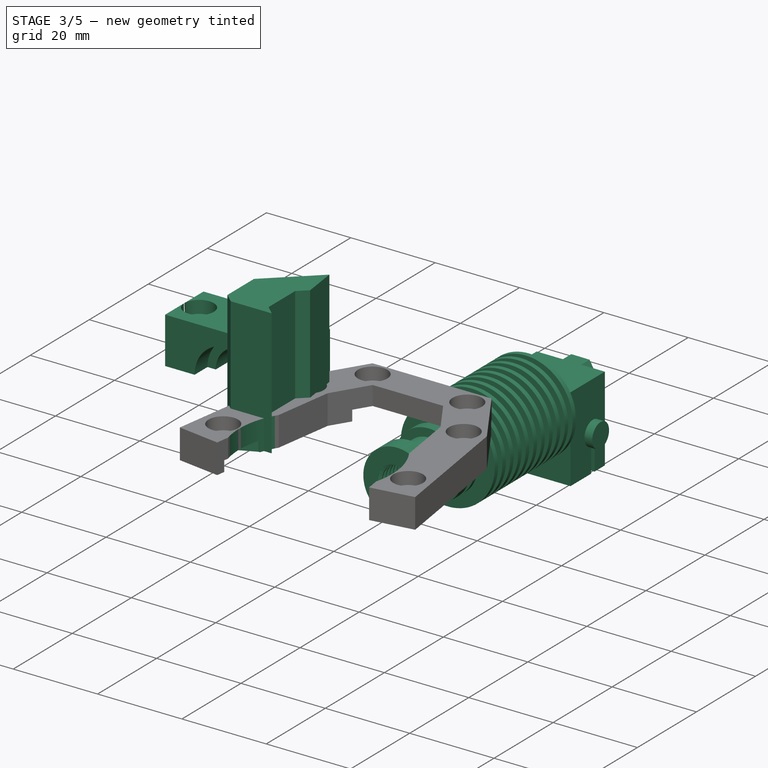
[diagram: stage 3 of 5 — iso view after this stage's code; geometry added in this stage tinted green]
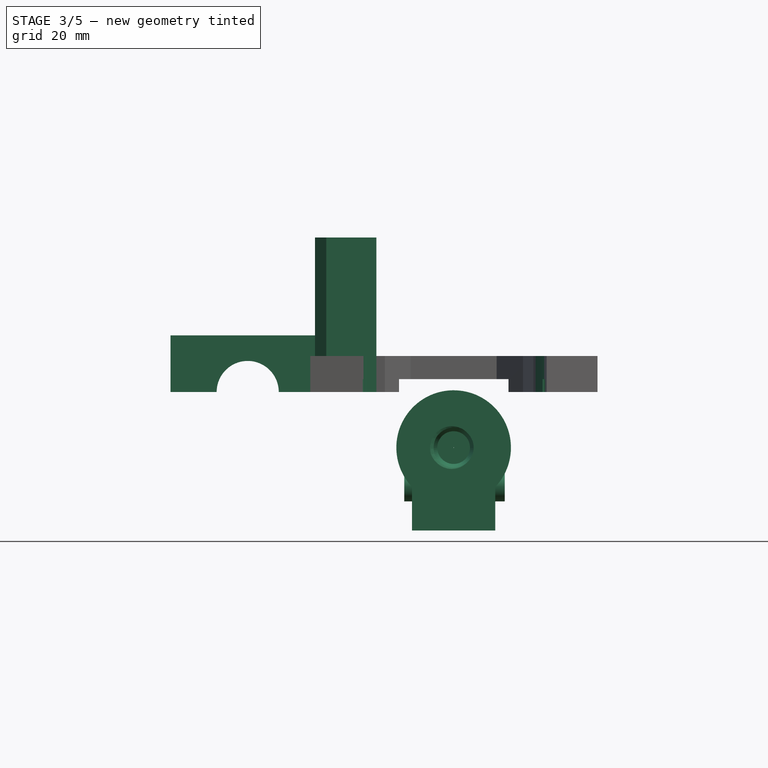
[diagram: stage 3 of 5 — front view after this stage's code; geometry added in this stage tinted green]
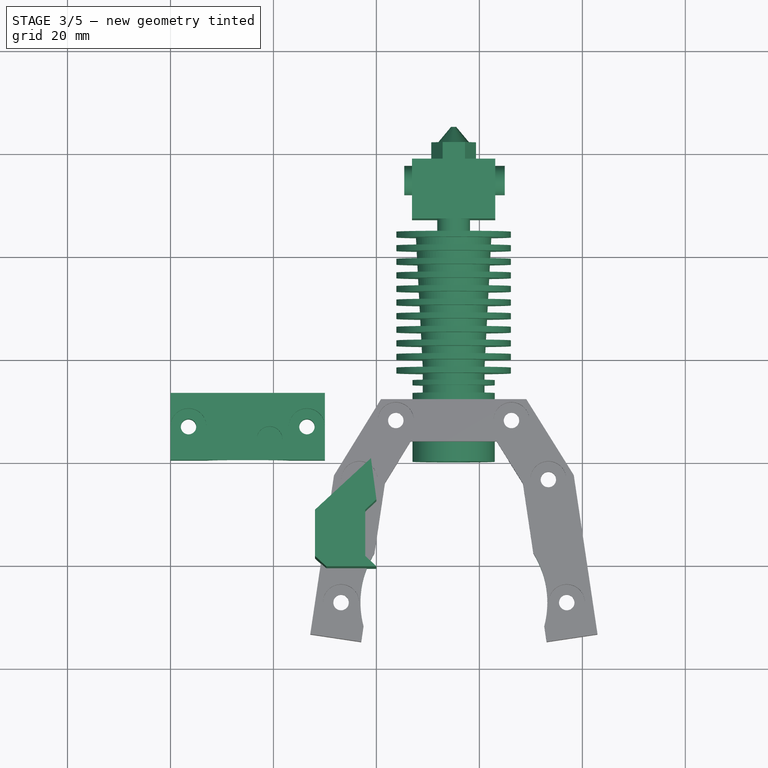
[diagram: stage 3 of 5 — top view after this stage's code; geometry added in this stage tinted green]
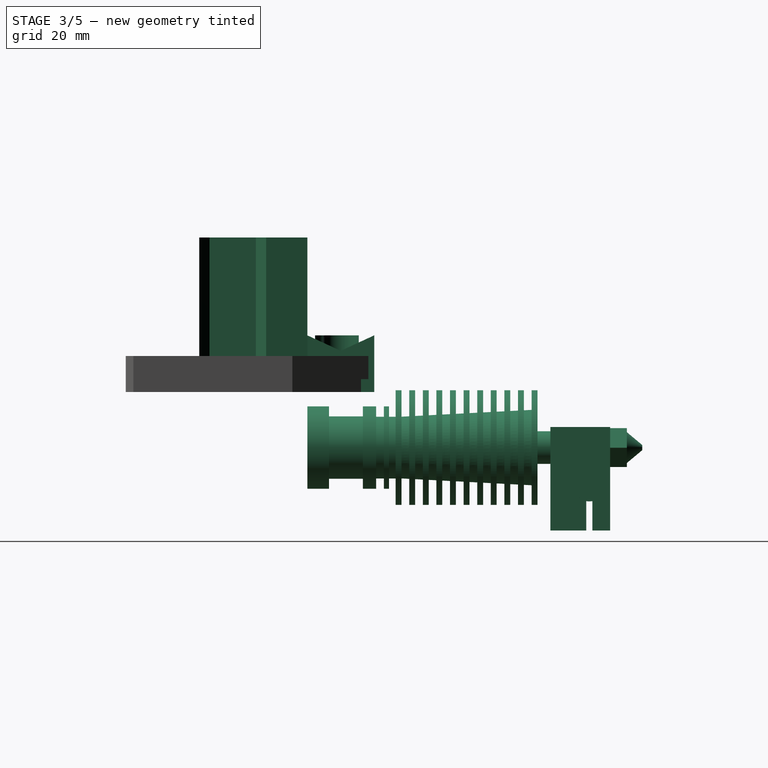
[diagram: stage 3 of 5 — right view after this stage's code; geometry added in this stage tinted green]
FEATURE [Part::Feature] Solid  label="3010"
  Placement = pos=(240,166.442,223.382) rot=(1,0,0;2.61799rad)
  shape: bbox 33.61 x 34.01 x 26.35 mm, 46 faces (baked)
FEATURE [Sketcher::SketchObject] Sketch016
  FullyConstrained = true
  MapMode = 5
  Support = -> [XY_Plane001]
  sketch-geometry (4):
    g0: LineSegment StartX=-10 StartY=0 StartZ=0 EndX=-40 EndY=0 EndZ=0
    g1: LineSegment StartX=-40 StartY=0 StartZ=0 EndX=-40 EndY=13 EndZ=0
    g2: LineSegment StartX=-40 StartY=13 StartZ=0 EndX=-10 EndY=13 EndZ=0
    g3: LineSegment StartX=-10 StartY=13 StartZ=0 EndX=-10 EndY=0 EndZ=0
  constraints (12):
    c: Coincident(g0,g1)
    c: Coincident(g1,g2)
    c: Coincident(g2,g3)
    c: Coincident(g3,g0)
    c: Horizontal(g0)
    c: Horizontal(g2)
    c: Vertical(g1)
    c: Vertical(g3)
    c: PointOnObject(g0,g-1)
    c: DistanceX(g0,g-1) = 10
    c: DistanceY(g1,g1) = 13
    c: DistanceX(g2,g2) = 30
FEATURE [PartDesign::Pad] Pad006
  Direction = (0,0,1)
  Length = 11
  Length2 = 10
  Profile = -> Sketch016
  ReferenceAxis = -> Sketch016 [N_Axis]
  Type = 0
FEATURE [Sketcher::SketchObject] Sketch017
  ExternalGeometry = -> [Pad006]
  FullyConstrained = true
  MapMode = 5
  Placement = pos=(0,0,0) rot=(1,0,0;3.14159rad)
  Support = -> [Pad006]
  sketch-geometry (10):
    g0: LineSegment StartX=-33 StartY=-13 StartZ=0 EndX=-33 EndY=-10.65 EndZ=0
    g1: LineSegment StartX=-33 StartY=-10.65 StartZ=0 EndX=-31.03 EndY=-10.65 EndZ=0
    g2: LineSegment StartX=-31.03 StartY=-10.65 StartZ=0 EndX=-31.03 EndY=-4.35 EndZ=0
    g3: LineSegment StartX=-31.03 StartY=-4.35 StartZ=0 EndX=-33 EndY=-4.35 EndZ=0
    g4: LineSegment StartX=-33 StartY=-4.35 StartZ=0 EndX=-33 EndY=0 EndZ=0
    g5: LineSegment StartX=-33 StartY=0 StartZ=0 EndX=-25 EndY=0 EndZ=0
    g6: LineSegment StartX=-25 StartY=0 StartZ=0 EndX=-25 EndY=-13 EndZ=0
    g7: LineSegment StartX=-33 StartY=-13 StartZ=0 EndX=-25 EndY=-13 EndZ=0
    g8: LineSegment StartX=-40 StartY=-13 StartZ=0 EndX=-25 EndY=0 EndZ=0
    g9: LineSegment StartX=-25 StartY=0 StartZ=0 EndX=-10 EndY=-13 EndZ=0
  constraints (28):
    c: PointOnObject(g0,g-4)
    c: Vertical(g0)
    c: Horizontal(g1)
    c: Vertical(g2)
    c: Horizontal(g3)
    c: Vertical(g4)
    c: Horizontal(g5)
    c: PointOnObject(g6,g-4)
    c: Vertical(g6)
    c: Coincident(g4,g5)
    c: Coincident(g3,g4)
    c: Coincident(g2,g3)
    c: Coincident(g6,g5)
    c: Coincident(g7,g0)
    c: Coincident(g7,g6)
    c: Coincident(g0,g1)
    c: Coincident(g1,g2)
    c: PointOnObject(g5,g-5)
    c: DistanceY(g0,g0) = 2.35
    c: DistanceY(g2,g2) = 6.3
    c: DistanceX(g5,g5) = 8
    c: Vertical(g0,g3)
    c: Coincident(g8,g-4)
    c: Coincident(g8,g5)
    c: Coincident(g9,g5)
    c: Coincident(g9,g-6)
    c: Equal(g8,g9)
    c: DistanceX(g3,g3) = 1.97
FEATURE [PartDesign::Groove] Groove001
  Angle = 180
  Axis = (0,1,0)
  Base = (-25,0,0)
  BaseFeature = -> Pad006
  Profile = -> Sketch017
  ReferenceAxis = -> Sketch017 [Edge7]
FEATURE [Sketcher::SketchObject] Sketch018
  ExternalGeometry = -> [Groove001]
  FullyConstrained = true
  MapMode = 5
  Placement = pos=(0,0,11) rot=(0,0,1;0rad)
  Support = -> [Groove001]
  sketch-geometry (4):
    g0: Circle CenterX=-36.5 CenterY=6.5 CenterZ=0 NormalX=0 NormalY=0 NormalZ=1 AngleXU=0 Radius=7.38241
    g1: Circle CenterX=-13.5 CenterY=6.5 CenterZ=0 NormalX=0 NormalY=0 NormalZ=1 AngleXU=0 Radius=7.38241
    g2: Circle CenterX=-36.5 CenterY=6.5 CenterZ=0 NormalX=0 NormalY=0 NormalZ=1 AngleXU=0 Radius=1.5
    g3: Circle CenterX=-13.5 CenterY=6.5 CenterZ=0 NormalX=0 NormalY=0 NormalZ=1 AngleXU=0 Radius=1.5
  constraints (10):
    c: PointOnObject(g-3,g0)
    c: PointOnObject(g-3,g0)
    c: PointOnObject(g-4,g0)
    c: PointOnObject(g-6,g1)
    c: PointOnObject(g-6,g1)
    c: PointOnObject(g-5,g1)
    c: Coincident(g2,g0)
    c: Coincident(g3,g1)
    c: Equal(g3,g2)
    c: Diameter(g3) = 3
FEATURE [PartDesign::Pocket] Pocket007
  BaseFeature = -> Groove001
  Direction = (0,0,-1)
  Length = 20
  Length2 = 5
  Profile = -> Sketch018
  ReferenceAxis = -> Sketch018 [N_Axis]
  Type = 0
FEATURE [Sketcher::SketchObject] Sketch019
  ExternalGeometry = -> [Pocket007]
  FullyConstrained = true
  MapMode = 5
  Placement = pos=(0,0,11) rot=(0,0,1;0rad)
  Support = -> [Pocket007]
  sketch-geometry (2):
    g0: Circle CenterX=-36.5 CenterY=6.5 CenterZ=0 NormalX=0 NormalY=0 NormalZ=1 AngleXU=0 Radius=3.5
    g1: Circle CenterX=-13.5 CenterY=6.5 CenterZ=0 NormalX=0 NormalY=0 NormalZ=1 AngleXU=0 Radius=3.5
  constraints (4):
    c: Coincident(g0,g-3)
    c: Coincident(g1,g-4)
    c: Equal(g1,g0)
    c: Diameter(g1) = 7
FEATURE [PartDesign::Pocket] Pocket008
  BaseFeature = -> Pocket007
  Direction = (0,0,-1)
  Length = 3
  Length2 = 5
  Profile = -> Sketch019
  ReferenceAxis = -> Sketch019 [N_Axis]
  Type = 0
FEATURE [PartDesign::Body] Body002  label="duct_left"
  Group = -> [Sketch020,Pad007,Sketch021,Sketch022,SubtractivePipe,Sketch023,Pocket009,Sketch024,Pad008,Pad009,Sketch025,Pad010,Pad011,Sketch026,Pocket010,Fillet]
  Origin = -> Origin002
  Placement = pos=(-0.2,61.7,-30.6) rot=(0,0,1;0rad)
  Tip = -> Fillet
FEATURE [Sketcher::SketchObject] Sketch027
  FullyConstrained = false
  MapMode = 5
  Support = -> [XY_Plane003]
  sketch-geometry (10):
    g0: LineSegment StartX=-9.75 StartY=-21 StartZ=0 EndX=-11.9217 EndY=-19 EndZ=0
    g1: LineSegment StartX=0 StartY=-21 StartZ=0 EndX=-2.17171 EndY=-19 EndZ=0
    g2: LineSegment StartX=-2.17171 StartY=-19 StartZ=0 EndX=-2.17171 EndY=-10 EndZ=0
    g3: LineSegment StartX=-2.17171 StartY=-10 StartZ=0 EndX=0 EndY=-8 EndZ=0
    g4: LineSegment StartX=-11.9217 StartY=-19 StartZ=0 EndX=-11.9217 EndY=-10 EndZ=0
    g5: LineSegment StartX=-11.9217 StartY=-10 StartZ=0 EndX=-1.06316 EndY=0 EndZ=0
    g6: LineSegment StartX=-1.06316 StartY=0 StartZ=0 EndX=0 EndY=-8 EndZ=0
    g7: LineSegment StartX=-9.75 StartY=-21 StartZ=0 EndX=0 EndY=-21 EndZ=0
    g8: LineSegment StartX=12.9069 StartY=12.8655 StartZ=0 EndX=-1.06316 EndY=0 EndZ=0
    g9: LineSegment StartX=0 StartY=-8 StartZ=0 EndX=18.0623 EndY=8.6342 EndZ=0
  constraints (28):
    c: PointOnObject(g1,g-2)
    c: Coincident(g2,g1)
    c: Vertical(g2)
    c: PointOnObject(g3,g-2)
    c: Coincident(g4,g0)
    c: Coincident(g6,g5)
    c: Coincident(g6,g3)
    c: Coincident(g5,g4)
    c: Coincident(g2,g3)
    c: Parallel(g4,g2)
    c: Parallel(g0,g1)
    c: Equal(g2,g4)
    c: DistanceX(g0,g1) = 9.75
    c: DistanceY(g6,g6) = 8
    c: DistanceY(g3,g3) = 2
    c: DistanceY(g1,g2) = 9
    c: Coincident(g7,g0)
    c: Coincident(g7,g1)
    c: Horizontal(g7)
    c: Horizontal(g4,g2)
    c: Parallel(g5,g3)
    c: PointOnObject(g5,g-1)
    c: Equal(g3,g1)
    c: Coincident(g8,g5)
    c: Coincident(g9,g3)
    c: Parallel(g8,g9)
    c: Parallel(g8,g5)
    c: Angle(g-2,g6) = 0.132121
FEATURE [PartDesign::Pad] Pad012
  Direction = (0,0,1)
  Length = 30
  Length2 = 10
  Profile = -> Sketch027
  ReferenceAxis = -> Sketch027 [N_Axis]
  Type = 0
FEATURE [PartDesign::Body] Body003  label="duct_right"
  Group = -> [Sketch027,Pad012,Sketch028,Sketch029,SubtractivePipe001,Sketch030,Pocket011,Sketch031,Pad013,Pad014,Sketch032,Pad015,Pad016,Sketch033,Pocket012,Fillet001]
  Origin = -> Origin003
  Placement = pos=(30.1,61.4,-0.2) rot=(0,1,0;3.14159rad)
  Tip = -> Fillet001
FEATURE [Part::Feature] Solid003
  shape: bbox 22.26 x 22.26 x 45.1 mm, 92 faces (baked)
FEATURE [Part::Feature] Solid004
  shape: bbox 6.352 x 6.352 x 2.5 mm, 4 faces (baked)
FEATURE [Part::Feature] Solid005
  shape: bbox 20.1 x 19.5 x 17.86 mm, 24 faces (baked)
FEATURE [Part::Compound2] Compound001  label="v6"
  Links = -> [Solid003,Solid004,Solid005]
  Placement = pos=(15,-1.84e-14,-10.8) rot=(-0.57735,-0.57735,0.57735;4.18879rad)
FEATURE [PartDesign::Body] Body  label="backplate"
  Group = -> [Sketch,Pad,Sketch002,Pad001,Sketch003,Groove,Sketch004,Pocket,Sketch005,Pocket001,Sketch006,Pocket002,Sketch008,Pocket003,Sketch009,Pad002,Sketch010,Pad003,Sketch011,Pocket004,Sketch012,Pad004,Sketch013,Pad005,Sketch014,Pocket005,Sketch015,Pocket006,Sketch034,Pocket013]
  Origin = -> Origin
  Tip = -> Pocket013
FEATURE [PartDesign::SubShapeBinder] Binder
  BindCopyOnChange = 0
  BindMode = 0
  ClaimChildren = false
  Context = -> Body001 [Binder.]
  Fuse = false
  MakeFace = true
  OffsetFill = false
  OffsetIntersection = false
  OffsetJoinType = 0
  OffsetOpenResult = false
  PartialLoad = false
  Relative = true
  Support = -> [Part__Feature059[Edge2559]]
  _Version = 2
FEATURE [Sketcher::SketchObject] Sketch041
  ExternalGeometry = -> [Binder]
  FullyConstrained = true
  MapMode = 5
  Placement = pos=(0,0,11) rot=(0,0,1;0rad)
  Support = -> [Pocket008]
  sketch-geometry (1):
    g0: Circle CenterX=-20.75 CenterY=4 CenterZ=0 NormalX=0 NormalY=0 NormalZ=1 AngleXU=0 Radius=2.5
  constraints (2):
    c: Coincident(g0,g-3)
    c: Diameter(g0) = 5
FEATURE [PartDesign::Pocket] Pocket017
  BaseFeature = -> Pocket008
  Direction = (0,0,-1)
  Length = 3
  Length2 = 5
  Profile = -> Sketch041
  ReferenceAxis = -> Sketch041 [N_Axis]
  Type = 0
FEATURE [PartDesign::SubShapeBinder] Binder006
  BindCopyOnChange = 0
  BindMode = 0
  ClaimChildren = false
  Context = -> Body005 [Binder006.]
  Fuse = false
  MakeFace = true
  OffsetFill = false
  OffsetIntersection = false
  OffsetJoinType = 0
  OffsetOpenResult = false
  PartialLoad = false
  Relative = true
  Support = -> [Part__Feature059[Edge259]]
  _Version = 2
FEATURE [Sketcher::SketchObject] Sketch046
  ExternalGeometry = -> [Binder006]
  FullyConstrained = true
  MapMode = 5
  Placement = pos=(0,0,7) rot=(0,0,1;0rad)
  Support = -> [Pocket020]
  sketch-geometry (1):
    g0: Circle CenterX=15.05 CenterY=-27.6093 CenterZ=0 NormalX=0 NormalY=0 NormalZ=1 AngleXU=0 Radius=18.15
  constraints (2):
    c: Coincident(g0,g-3)
    c: Tangent(g0,g-3)
FEATURE [PartDesign::Pocket] Pocket021
  BaseFeature = -> Pocket020
  Direction = (0,0,-1)
  Length = 10
  Length2 = 5
  Profile = -> Sketch046
  ReferenceAxis = -> Sketch046 [N_Axis]
  Type = 0
FEATURE [PartDesign::SubShapeBinder] Binder007
  BindCopyOnChange = 0
  BindMode = 0
  ClaimChildren = false
  Context = -> Body005 [Binder007.]
  Fuse = false
  MakeFace = true
  OffsetFill = false
  OffsetIntersection = false
  OffsetJoinType = 0
  OffsetOpenResult = false
  PartialLoad = false
  Relative = true
  Support = -> [Part__Feature059[Edge71,Edge74,Edge77,Edge92,Edge121,Edge89]]
  _Version = 2
FEATURE [Sketcher::SketchObject] Sketch047
  ExternalGeometry = -> [Binder007]
  FullyConstrained = true
  MapMode = 5
  Placement = pos=(0,0,0) rot=(1,0,0;3.14159rad)
  Support = -> [Pocket021]
  sketch-geometry (8):
    g0: ArcOfCircle CenterX=-6.9 CenterY=27.6093 CenterZ=0 NormalX=0 NormalY=0 NormalZ=1 AngleXU=0 Radius=3.4 StartAngle=1.99909 EndAngle=4.28409
    g1: LineSegment StartX=-8.31208 StartY=30.7022 StartZ=0 EndX=-2.5265 EndY=33.3437 EndZ=0
    g2: LineSegment StartX=-2.5265 StartY=33.3437 StartZ=0 EndX=32.6265 EndY=33.3437 EndZ=0
    g3: LineSegment StartX=32.6265 StartY=33.3437 StartZ=0 EndX=38.4121 EndY=30.7022 EndZ=0
    g4: ArcOfCircle CenterX=37 CenterY=27.6093 CenterZ=0 NormalX=0 NormalY=0 NormalZ=1 AngleXU=0 Radius=3.4 StartAngle=5.14068 EndAngle=7.42568
    g5: LineSegment StartX=38.4121 StartY=24.5164 StartZ=0 EndX=32.6265 EndY=21.8749 EndZ=0
    g6: LineSegment StartX=-2.5265 StartY=21.8749 StartZ=0 EndX=32.6265 EndY=21.8749 EndZ=0
    g7: LineSegment StartX=-8.3121 StartY=24.5164 StartZ=0 EndX=-2.5265 EndY=21.8749 EndZ=0
  constraints (18):
    c: Coincident(g0,g-4)
    c: Coincident(g0,g-5)
    c: Coincident(g1,g0)
    c: Coincident(g1,g-3)
    c: Coincident(g2,g1)
    c: Coincident(g2,g-6)
    c: Coincident(g3,g2)
    c: Coincident(g3,g-7)
    c: Coincident(g4,g-7)
    c: Coincident(g4,g3)
    c: Coincident(g5,g4)
    c: Coincident(g5,g-8)
    c: Coincident(g6,g-5)
    c: Coincident(g6,g5)
    c: Coincident(g7,g0)
    c: Coincident(g7,g6)
    c: Parallel(g1,g-3)
    c: Parallel(g5,g-8)
FEATURE [PartDesign::Pocket] Pocket022
  BaseFeature = -> Pocket021
  Direction = (0,0,1)
  Length = 2.5
  Length2 = 5
  Profile = -> Sketch047
  ReferenceAxis = -> Sketch047 [N_Axis]
  Type = 0
FEATURE [PartDesign::Body] Body005  label="sherpa mini mount"
  Group = -> [Binder002,Binder003,Sketch042,Pad020,Binder004,Binder005,Sketch043,Pocket018,Sketch044,Pocket019,Sketch045,Pocket020,Sketch046,Binder006,Pocket021,Binder007,Sketch047,Pocket022]
  Origin = -> Origin025
  Placement = pos=(0,0,2.5) rot=(0,0,1;0rad)
  Tip = -> Pocket022
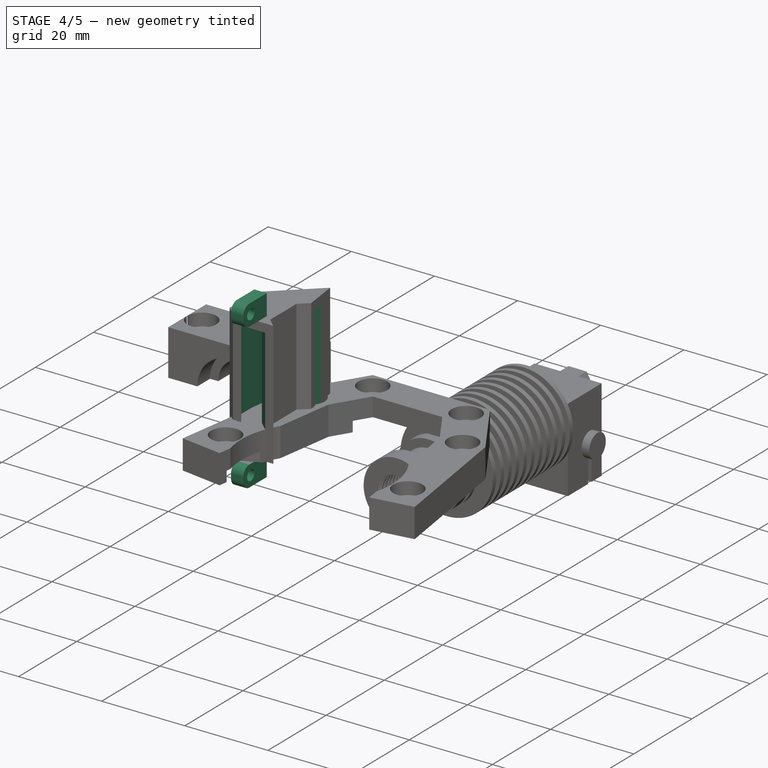
[diagram: stage 4 of 5 — iso view after this stage's code; geometry added in this stage tinted green]
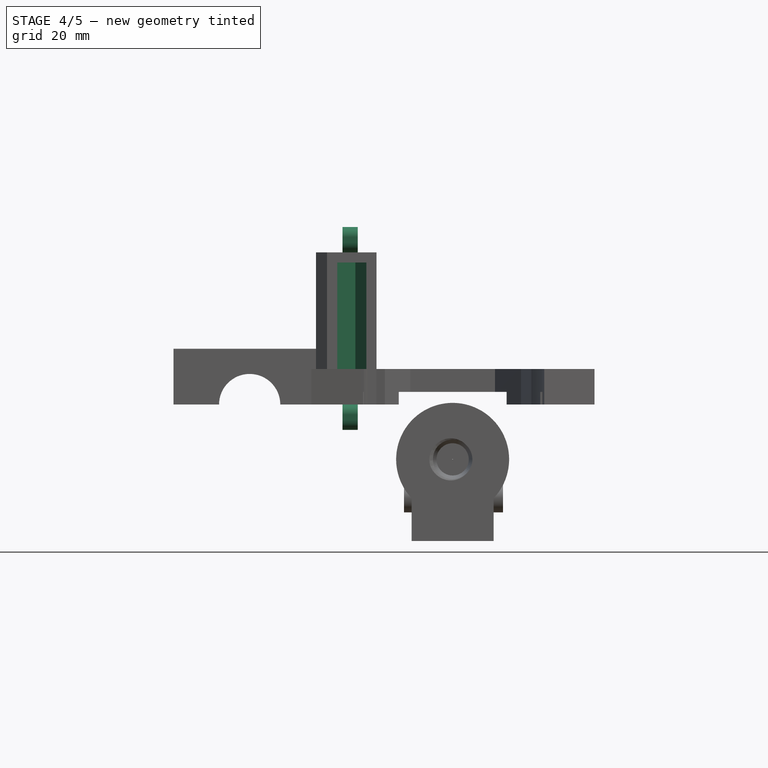
[diagram: stage 4 of 5 — front view after this stage's code; geometry added in this stage tinted green]
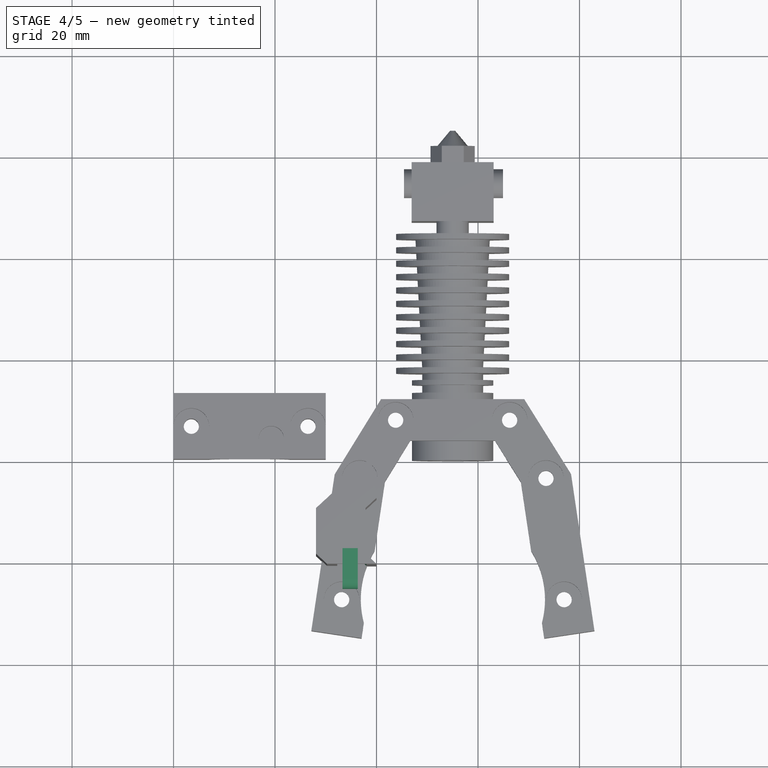
[diagram: stage 4 of 5 — top view after this stage's code; geometry added in this stage tinted green]
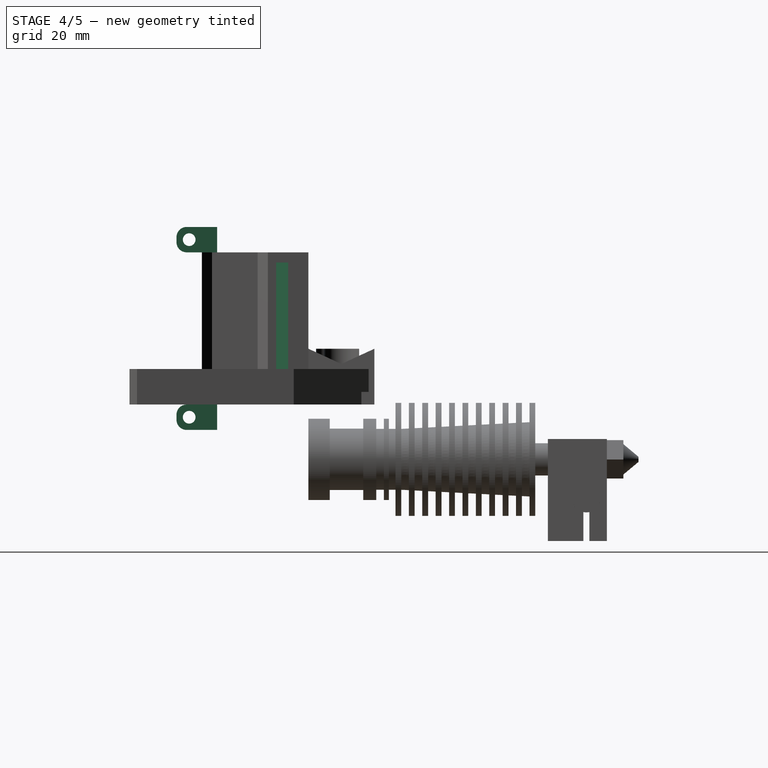
[diagram: stage 4 of 5 — right view after this stage's code; geometry added in this stage tinted green]
FEATURE [Sketcher::SketchObject] Sketch020
  FullyConstrained = false
  MapMode = 5
  Support = -> [XY_Plane002]
  sketch-geometry (10):
    g0: LineSegment StartX=-9.75 StartY=-21 StartZ=0 EndX=-11.9217 EndY=-19 EndZ=0
    g1: LineSegment StartX=0 StartY=-21 StartZ=0 EndX=-2.17171 EndY=-19 EndZ=0
    g2: LineSegment StartX=-2.17171 StartY=-19 StartZ=0 EndX=-2.17171 EndY=-10 EndZ=0
    g3: LineSegment StartX=-2.17171 StartY=-10 StartZ=0 EndX=0 EndY=-8 EndZ=0
    g4: LineSegment StartX=-11.9217 StartY=-19 StartZ=0 EndX=-11.9217 EndY=-10 EndZ=0
    g5: LineSegment StartX=-11.9217 StartY=-10 StartZ=0 EndX=-1.06316 EndY=0 EndZ=0
    g6: LineSegment StartX=-1.06316 StartY=0 StartZ=0 EndX=0 EndY=-8 EndZ=0
    g7: LineSegment StartX=-9.75 StartY=-21 StartZ=0 EndX=0 EndY=-21 EndZ=0
    g8: LineSegment StartX=12.9069 StartY=12.8655 StartZ=0 EndX=-1.06316 EndY=0 EndZ=0
    g9: LineSegment StartX=0 StartY=-8 StartZ=0 EndX=18.0623 EndY=8.6342 EndZ=0
  constraints (28):
    c: PointOnObject(g1,g-2)
    c: Coincident(g2,g1)
    c: Vertical(g2)
    c: PointOnObject(g3,g-2)
    c: Coincident(g4,g0)
    c: Coincident(g6,g5)
    c: Coincident(g6,g3)
    c: Coincident(g5,g4)
    c: Coincident(g2,g3)
    c: Parallel(g4,g2)
    c: Parallel(g0,g1)
    c: Equal(g2,g4)
    c: DistanceX(g0,g1) = 9.75
    c: DistanceY(g6,g6) = 8
    c: DistanceY(g3,g3) = 2
    c: DistanceY(g1,g2) = 9
    c: Coincident(g7,g0)
    c: Coincident(g7,g1)
    c: Horizontal(g7)
    c: Horizontal(g4,g2)
    c: Parallel(g5,g3)
    c: PointOnObject(g5,g-1)
    c: Equal(g3,g1)
    c: Coincident(g8,g5)
    c: Coincident(g9,g3)
    c: Parallel(g8,g9)
    c: Parallel(g8,g5)
    c: Angle(g-2,g6) = 0.132121
FEATURE [PartDesign::Pad] Pad007
  Direction = (0,0,1)
  Length = 30
  Length2 = 10
  Profile = -> Sketch020
  ReferenceAxis = -> Sketch020 [N_Axis]
  Type = 0
FEATURE [Sketcher::SketchObject] Sketch021
  ExternalGeometry = -> [Pad007]
  FullyConstrained = true
  MapMode = 5
  Placement = pos=(0,-21,0) rot=(1,0,0;1.5708rad)
  Support = -> [Pad007]
  sketch-geometry (4):
    g0: LineSegment StartX=-7.75 StartY=28 StartZ=0 EndX=-2 EndY=28 EndZ=0
    g1: LineSegment StartX=-2 StartY=28 StartZ=0 EndX=-2 EndY=2 EndZ=0
    g2: LineSegment StartX=-2 StartY=2 StartZ=0 EndX=-7.75 EndY=2 EndZ=0
    g3: LineSegment StartX=-7.75 StartY=2 StartZ=0 EndX=-7.75 EndY=28 EndZ=0
  constraints (12):
    c: Coincident(g0,g1)
    c: Coincident(g1,g2)
    c: Coincident(g2,g3)
    c: Coincident(g3,g0)
    c: Horizontal(g0)
    c: Horizontal(g2)
    c: Vertical(g1)
    c: Vertical(g3)
    c: DistanceY(g-3,g2) = 2
    c: DistanceX(g-3,g2) = 2
    c: DistanceY(g0,g-4) = 2
    c: DistanceX(g0,g-4) = 2
FEATURE [Sketcher::SketchObject] Sketch022
  ExternalGeometry = -> [Pad007]
  FullyConstrained = true
  MapMode = 5
  Placement = pos=(0,0,30) rot=(0,0,1;0rad)
  Support = -> [Pad007]
  sketch-geometry (11):
    g0: LineSegment StartX=-11.9217 StartY=-10 StartZ=0 EndX=-2.17171 EndY=-10 EndZ=0
    g1: LineSegment StartX=-2.17171 StartY=-10 StartZ=0 EndX=-2.17171 EndY=-19 EndZ=0
    g2: LineSegment StartX=-2.17171 StartY=-19 StartZ=0 EndX=-11.9217 EndY=-19 EndZ=0
    g3: LineSegment StartX=-11.9217 StartY=-19 StartZ=0 EndX=-11.9217 EndY=-10 EndZ=0
    g4: Circle CenterX=-7.04671 CenterY=-14.5 CenterZ=0 NormalX=0 NormalY=0 NormalZ=1 AngleXU=0 Radius=6.63443
    g5: LineSegment StartX=-7.04671 StartY=-10 StartZ=0 EndX=-7.04671 EndY=-19 EndZ=0
    g6: Circle CenterX=-4.875 CenterY=-21 CenterZ=0 NormalX=0 NormalY=0 NormalZ=1 AngleXU=0 Radius=4.875
    g7: Circle CenterX=-0.531582 CenterY=-4 CenterZ=0 NormalX=0 NormalY=0 NormalZ=1 AngleXU=0 Radius=4.03517
    g8: LineSegment StartX=-4.875 StartY=-21 StartZ=0 EndX=-7.04671 EndY=-19 EndZ=0
    g9: LineSegment StartX=-7.04671 StartY=-10 StartZ=0 EndX=-0.531582 EndY=-4 EndZ=0
    g10: LineSegment StartX=-7.04671 StartY=-19 StartZ=0 EndX=-7.04671 EndY=-10 EndZ=0
  constraints (29):
    c: Coincident(g0,g1)
    c: Coincident(g1,g2)
    c: Coincident(g2,g3)
    c: Coincident(g3,g0)
    c: Horizontal(g0)
    c: Horizontal(g2)
    c: Vertical(g1)
    c: Vertical(g3)
    c: Coincident(g0,g-4)
    c: Coincident(g1,g-5)
    c: PointOnObject(g2,g4)
    c: PointOnObject(g0,g4)
    c: PointOnObject(g0,g4)
    c: PointOnObject(g5,g0)
    c: PointOnObject(g5,g2)
    c: Vertical(g5)
    c: PointOnObject(g4,g5)
    c: PointOnObject(g6,g-3)
    c: PointOnObject(g-3,g6)
    c: PointOnObject(g-3,g6)
    c: PointOnObject(g7,g-6)
    c: PointOnObject(g-6,g7)
    c: PointOnObject(g-6,g7)
    c: Coincident(g8,g6)
    c: Coincident(g8,g5)
    c: Coincident(g9,g5)
    c: Coincident(g9,g7)
    c: Coincident(g10,g8)
    c: Coincident(g10,g9)
FEATURE [PartDesign::SubtractivePipe] SubtractivePipe
  AuxilleryCurvelinear = true
  AuxillerySpineTangent = false
  BaseFeature = -> Pad007
  Binormal = (0,0,0)
  Mode = 0
  Profile = -> Sketch021
  Spine = -> Sketch022
  SpineTangent = false
  Transformation = 0
  Transition = 0
FEATURE [Sketcher::SketchObject] Sketch028
  ExternalGeometry = -> [Pad012]
  FullyConstrained = true
  MapMode = 5
  Placement = pos=(0,-21,0) rot=(1,0,0;1.5708rad)
  Support = -> [Pad012]
  sketch-geometry (4):
    g0: LineSegment StartX=-7.75 StartY=28 StartZ=0 EndX=-2 EndY=28 EndZ=0
    g1: LineSegment StartX=-2 StartY=28 StartZ=0 EndX=-2 EndY=2 EndZ=0
    g2: LineSegment StartX=-2 StartY=2 StartZ=0 EndX=-7.75 EndY=2 EndZ=0
    g3: LineSegment StartX=-7.75 StartY=2 StartZ=0 EndX=-7.75 EndY=28 EndZ=0
  constraints (12):
    c: Coincident(g0,g1)
    c: Coincident(g1,g2)
    c: Coincident(g2,g3)
    c: Coincident(g3,g0)
    c: Horizontal(g0)
    c: Horizontal(g2)
    c: Vertical(g1)
    c: Vertical(g3)
    c: DistanceY(g-3,g2) = 2
    c: DistanceX(g-3,g2) = 2
    c: DistanceY(g0,g-4) = 2
    c: DistanceX(g0,g-4) = 2
FEATURE [Sketcher::SketchObject] Sketch029
  ExternalGeometry = -> [Pad012]
  FullyConstrained = true
  MapMode = 5
  Placement = pos=(0,0,30) rot=(0,0,1;0rad)
  Support = -> [Pad012]
  sketch-geometry (11):
    g0: LineSegment StartX=-11.9217 StartY=-10 StartZ=0 EndX=-2.17171 EndY=-10 EndZ=0
    g1: LineSegment StartX=-2.17171 StartY=-10 StartZ=0 EndX=-2.17171 EndY=-19 EndZ=0
    g2: LineSegment StartX=-2.17171 StartY=-19 StartZ=0 EndX=-11.9217 EndY=-19 EndZ=0
    g3: LineSegment StartX=-11.9217 StartY=-19 StartZ=0 EndX=-11.9217 EndY=-10 EndZ=0
    g4: Circle CenterX=-7.04671 CenterY=-14.5 CenterZ=0 NormalX=0 NormalY=0 NormalZ=1 AngleXU=0 Radius=6.63443
    g5: LineSegment StartX=-7.04671 StartY=-10 StartZ=0 EndX=-7.04671 EndY=-19 EndZ=0
    g6: Circle CenterX=-4.875 CenterY=-21 CenterZ=0 NormalX=0 NormalY=0 NormalZ=1 AngleXU=0 Radius=4.875
    g7: Circle CenterX=-0.531582 CenterY=-4 CenterZ=0 NormalX=0 NormalY=0 NormalZ=1 AngleXU=0 Radius=4.03517
    g8: LineSegment StartX=-4.875 StartY=-21 StartZ=0 EndX=-7.04671 EndY=-19 EndZ=0
    g9: LineSegment StartX=-7.04671 StartY=-10 StartZ=0 EndX=-0.531582 EndY=-4 EndZ=0
    g10: LineSegment StartX=-7.04671 StartY=-19 StartZ=0 EndX=-7.04671 EndY=-10 EndZ=0
  constraints (29):
    c: Coincident(g0,g1)
    c: Coincident(g1,g2)
    c: Coincident(g2,g3)
    c: Coincident(g3,g0)
    c: Horizontal(g0)
    c: Horizontal(g2)
    c: Vertical(g1)
    c: Vertical(g3)
    c: Coincident(g0,g-4)
    c: Coincident(g1,g-5)
    c: PointOnObject(g2,g4)
    c: PointOnObject(g0,g4)
    c: PointOnObject(g0,g4)
    c: PointOnObject(g5,g0)
    c: PointOnObject(g5,g2)
    c: Vertical(g5)
    c: PointOnObject(g4,g5)
    c: PointOnObject(g6,g-3)
    c: PointOnObject(g-3,g6)
    c: PointOnObject(g-3,g6)
    c: PointOnObject(g7,g-6)
    c: PointOnObject(g-6,g7)
    c: PointOnObject(g-6,g7)
    c: Coincident(g8,g6)
    c: Coincident(g8,g5)
    c: Coincident(g9,g5)
    c: Coincident(g9,g7)
    c: Coincident(g10,g8)
    c: Coincident(g10,g9)
FEATURE [Sketcher::SketchObject] Sketch033
  FullyConstrained = false
  MapMode = 5
  Placement = pos=(-6.7,0,0) rot=(0.57735,-0.57735,-0.57735;2.0944rad)
  sketch-geometry (4):
    g0: Circle CenterX=23.5 CenterY=-2.5 CenterZ=0 NormalX=0 NormalY=0 NormalZ=1 AngleXU=0 Radius=3.53553
    g1: Circle CenterX=23.5 CenterY=-2.5 CenterZ=0 NormalX=0 NormalY=0 NormalZ=1 AngleXU=0 Radius=1.25
    g2: Circle CenterX=23.5 CenterY=32.5 CenterZ=0 NormalX=0 NormalY=0 NormalZ=1 AngleXU=0 Radius=1.25
    g3: Circle CenterX=23.5 CenterY=32.5 CenterZ=0 NormalX=0 NormalY=0 NormalZ=1 AngleXU=0 Radius=3.53553
  constraints (4):
    c: Coincident(g1,g0)
    c: Diameter(g1) = 2.5
    c: Coincident(g2,g3)
    c: Diameter(g2) = 2.5
FEATURE [PartDesign::SubtractivePipe] SubtractivePipe001
  AuxilleryCurvelinear = true
  AuxillerySpineTangent = false
  BaseFeature = -> Pad012
  Binormal = (0,0,0)
  Mode = 0
  Profile = -> Sketch028
  Spine = -> Sketch029
  SpineTangent = false
  Transformation = 0
  Transition = 0
FEATURE [Sketcher::SketchObject] Sketch030
  ExternalGeometry = -> [SubtractivePipe001]
  FullyConstrained = true
  MapMode = 5
  Placement = pos=(1.2e-15,-4,1e-15) rot=(1,0,0;1.5708rad)
  Support = -> [SubtractivePipe001]
  sketch-geometry (4):
    g0: LineSegment StartX=-3.40658 StartY=2 StartZ=0 EndX=-0.531582 EndY=2 EndZ=0
    g1: LineSegment StartX=-0.531582 StartY=2 StartZ=0 EndX=-0.531582 EndY=28 EndZ=0
    g2: LineSegment StartX=-0.531582 StartY=28 StartZ=0 EndX=-3.40658 EndY=28 EndZ=0
    g3: LineSegment StartX=-3.40658 StartY=28 StartZ=0 EndX=-3.40658 EndY=2 EndZ=0
  constraints (10):
    c: Coincident(g0,g1)
    c: Coincident(g1,g2)
    c: Coincident(g2,g3)
    c: Coincident(g3,g0)
    c: Horizontal(g0)
    c: Horizontal(g2)
    c: Vertical(g1)
    c: Vertical(g3)
    c: Coincident(g0,g-4)
    c: Coincident(g1,g-3)
FEATURE [PartDesign::Pocket] Pocket011
  BaseFeature = -> SubtractivePipe001
  Direction = (-3e-16,1,-2e-16)
  Length = 5
  Length2 = 5
  Profile = -> Sketch030
  ReferenceAxis = -> Sketch030 [N_Axis]
  Type = 0
FEATURE [Sketcher::SketchObject] Sketch031
  ExternalGeometry = -> [Pocket011]
  FullyConstrained = true
  MapMode = 5
  Placement = pos=(0,0,0) rot=(1,0,0;3.14159rad)
  Support = -> [Pocket011]
  sketch-geometry (4):
    g0: LineSegment StartX=-3.7 StartY=21 StartZ=0 EndX=-6.7 EndY=21 EndZ=0
    g1: LineSegment StartX=-6.7 StartY=21 StartZ=0 EndX=-6.7 EndY=18 EndZ=0
    g2: LineSegment StartX=-6.7 StartY=18 StartZ=0 EndX=-3.7 EndY=18 EndZ=0
    g3: LineSegment StartX=-3.7 StartY=18 StartZ=0 EndX=-3.7 EndY=21 EndZ=0
  constraints (12):
    c: Coincident(g0,g1)
    c: Coincident(g1,g2)
    c: Coincident(g2,g3)
    c: Coincident(g3,g0)
    c: Horizontal(g0)
    c: Horizontal(g2)
    c: Vertical(g1)
    c: Vertical(g3)
    c: DistanceX(g0,g-3) = 3.7
    c: PointOnObject(g0,g-4)
    c: Equal(g2,g3)
    c: DistanceY(g3,g3) = 3
FEATURE [PartDesign::Pad] Pad013
  BaseFeature = -> Pocket011
  Direction = (0,0,-1)
  Length = 5
  Length2 = 10
  Profile = -> Sketch031
  ReferenceAxis = -> Sketch031 [N_Axis]
  Type = 0
FEATURE [PartDesign::Pad] Pad014
  BaseFeature = -> Pad013
  Direction = (0,-1,0)
  Length = 5
  Length2 = 10
  Profile = -> Pad013 [Face6]
  Type = 0
FEATURE [Sketcher::SketchObject] Sketch032
  ExternalGeometry = -> [Pad014]
  FullyConstrained = true
  MapMode = 5
  Placement = pos=(0,0,30) rot=(0,0,1;0rad)
  Support = -> [Pad014]
  sketch-geometry (4):
    g0: LineSegment StartX=-6.7 StartY=-21 StartZ=0 EndX=-3.7 EndY=-21 EndZ=0
    g1: LineSegment StartX=-3.7 StartY=-21 StartZ=0 EndX=-3.7 EndY=-18 EndZ=0
    g2: LineSegment StartX=-3.7 StartY=-18 StartZ=0 EndX=-6.7 EndY=-18 EndZ=0
    g3: LineSegment StartX=-6.7 StartY=-18 StartZ=0 EndX=-6.7 EndY=-21 EndZ=0
  constraints (10):
    c: Coincident(g0,g1)
    c: Coincident(g1,g2)
    c: Coincident(g2,g3)
    c: Coincident(g3,g0)
    c: Horizontal(g0)
    c: Horizontal(g2)
    c: Vertical(g1)
    c: Vertical(g3)
    c: Coincident(g0,g-5)
    c: Coincident(g1,g-6)
FEATURE [PartDesign::Pad] Pad015
  BaseFeature = -> Pad014
  Direction = (0,0,1)
  Length = 5
  Length2 = 10
  Profile = -> Sketch032
  ReferenceAxis = -> Sketch032 [N_Axis]
  Type = 0
FEATURE [PartDesign::Pad] Pad016
  BaseFeature = -> Pad015
  Direction = (0,-1,0)
  Length = 5
  Length2 = 10
  Profile = -> Pad015 [Face7]
  Type = 0
FEATURE [PartDesign::Pocket] Pocket012
  BaseFeature = -> Pad016
  Direction = (1,0,0)
  Length = 5
  Length2 = 5
  Profile = -> Sketch033
  ReferenceAxis = -> Sketch033 [N_Axis]
  Type = 0
FEATURE [PartDesign::Fillet] Fillet001
  Base = -> Pocket012 [Edge89,Edge40,Edge37,Edge82]
  BaseFeature = -> Pocket012
  Radius = 2
  SupportTransform = false
  UseAllEdges = false
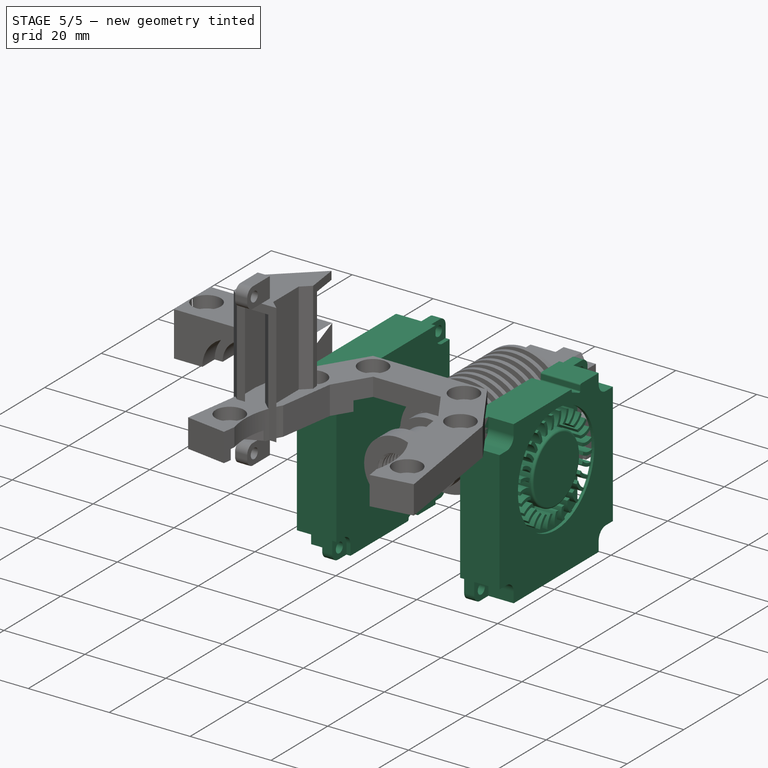
[diagram: stage 5 of 5 — iso view after this stage's code; geometry added in this stage tinted green]
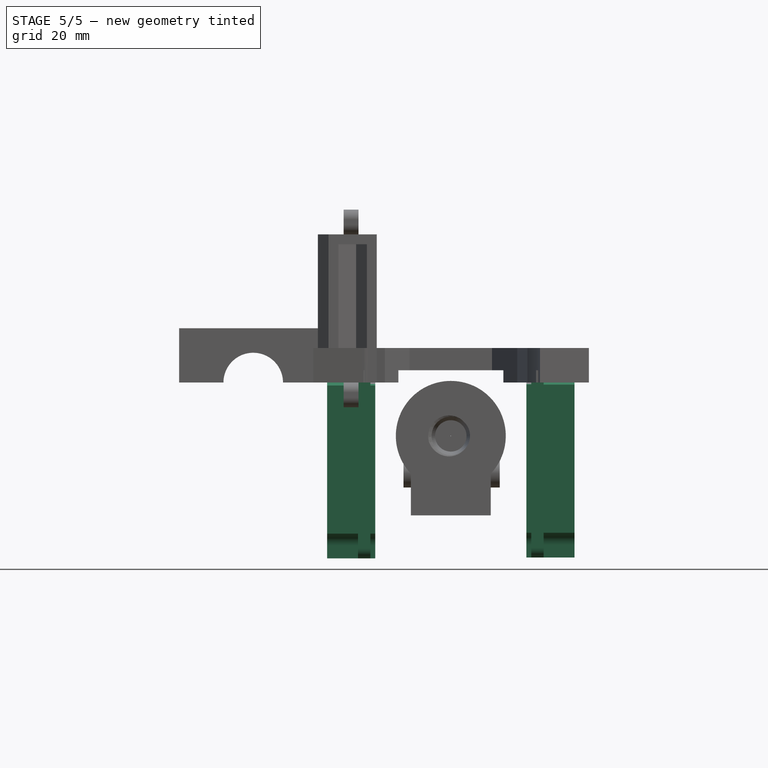
[diagram: stage 5 of 5 — front view after this stage's code; geometry added in this stage tinted green]
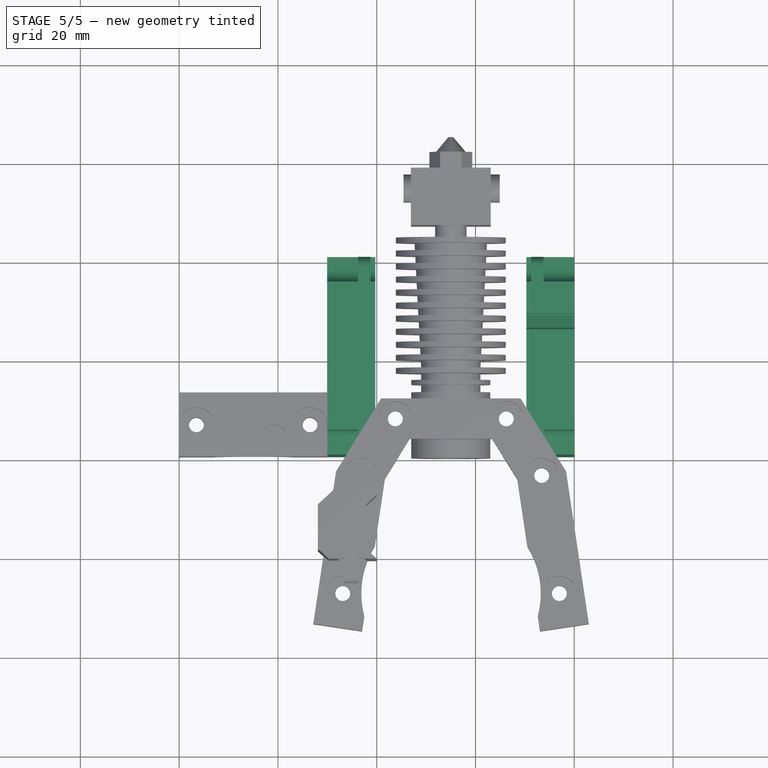
[diagram: stage 5 of 5 — top view after this stage's code; geometry added in this stage tinted green]
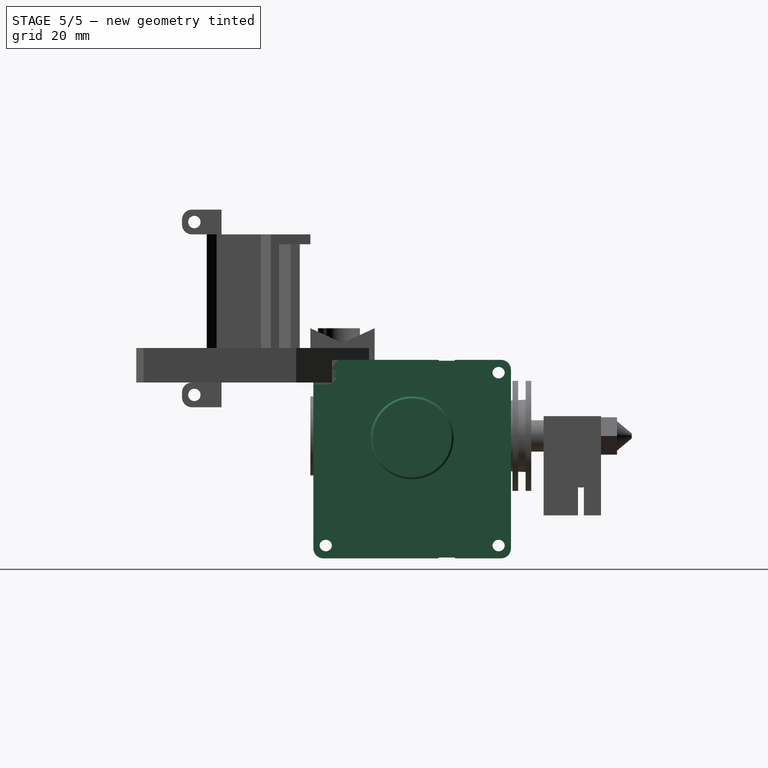
[diagram: stage 5 of 5 — right view after this stage's code; geometry added in this stage tinted green]
FEATURE [Part::Feature] Solid001
  shape: bbox 25.4 x 25.39 x 7.25 mm, 190 faces (baked)
FEATURE [Part::Feature] Solid002
  shape: bbox 40 x 40 x 9.75 mm, 82 faces (baked)
FEATURE [Part::Compound2] Compound  label="4010"
  Links = -> [Solid001,Solid002]
  Placement = pos=(15,48,6) rot=(-0.707107,0,0.707107;3.14159rad)
FEATURE [Part::Feature] Solid006
  shape: bbox 25.4 x 25.39 x 7.25 mm, 190 faces (baked)
FEATURE [Part::Feature] Solid007
  shape: bbox 40 x 40 x 9.75 mm, 82 faces (baked)
FEATURE [Part::Compound2] Compound002  label="4010_2"
  Links = -> [Solid006,Solid007]
  Placement = pos=(15,48,-37) rot=(0.707107,0,0.707107;3.14159rad)
FEATURE [Sketcher::SketchObject] Sketch023
  ExternalGeometry = -> [SubtractivePipe]
  FullyConstrained = true
  MapMode = 5
  Placement = pos=(1.2e-15,-4,1e-15) rot=(1,0,0;1.5708rad)
  Support = -> [SubtractivePipe]
  sketch-geometry (4):
    g0: LineSegment StartX=-3.40658 StartY=2 StartZ=0 EndX=-0.531582 EndY=2 EndZ=0
    g1: LineSegment StartX=-0.531582 StartY=2 StartZ=0 EndX=-0.531582 EndY=28 EndZ=0
    g2: LineSegment StartX=-0.531582 StartY=28 StartZ=0 EndX=-3.40658 EndY=28 EndZ=0
    g3: LineSegment StartX=-3.40658 StartY=28 StartZ=0 EndX=-3.40658 EndY=2 EndZ=0
  constraints (10):
    c: Coincident(g0,g1)
    c: Coincident(g1,g2)
    c: Coincident(g2,g3)
    c: Coincident(g3,g0)
    c: Horizontal(g0)
    c: Horizontal(g2)
    c: Vertical(g1)
    c: Vertical(g3)
    c: Coincident(g0,g-4)
    c: Coincident(g1,g-3)
FEATURE [PartDesign::Pocket] Pocket009
  BaseFeature = -> SubtractivePipe
  Direction = (-3e-16,1,-2e-16)
  Length = 5
  Length2 = 5
  Profile = -> Sketch023
  ReferenceAxis = -> Sketch023 [N_Axis]
  Type = 0
FEATURE [Sketcher::SketchObject] Sketch024
  ExternalGeometry = -> [Pocket009]
  FullyConstrained = true
  MapMode = 5
  Placement = pos=(0,0,0) rot=(1,0,0;3.14159rad)
  Support = -> [Pocket009]
  sketch-geometry (4):
    g0: LineSegment StartX=-3.7 StartY=21 StartZ=0 EndX=-6.7 EndY=21 EndZ=0
    g1: LineSegment StartX=-6.7 StartY=21 StartZ=0 EndX=-6.7 EndY=18 EndZ=0
    g2: LineSegment StartX=-6.7 StartY=18 StartZ=0 EndX=-3.7 EndY=18 EndZ=0
    g3: LineSegment StartX=-3.7 StartY=18 StartZ=0 EndX=-3.7 EndY=21 EndZ=0
  constraints (12):
    c: Coincident(g0,g1)
    c: Coincident(g1,g2)
    c: Coincident(g2,g3)
    c: Coincident(g3,g0)
    c: Horizontal(g0)
    c: Horizontal(g2)
    c: Vertical(g1)
    c: Vertical(g3)
    c: DistanceX(g0,g-3) = 3.7
    c: PointOnObject(g0,g-4)
    c: Equal(g2,g3)
    c: DistanceY(g3,g3) = 3
FEATURE [PartDesign::Pad] Pad008
  BaseFeature = -> Pocket009
  Direction = (0,0,-1)
  Length = 5
  Length2 = 10
  Profile = -> Sketch024
  ReferenceAxis = -> Sketch024 [N_Axis]
  Type = 0
FEATURE [PartDesign::Pad] Pad009
  BaseFeature = -> Pad008
  Direction = (0,-1,0)
  Length = 5
  Length2 = 10
  Profile = -> Pad008 [Face6]
  Type = 0
FEATURE [Sketcher::SketchObject] Sketch025
  ExternalGeometry = -> [Pad009]
  FullyConstrained = true
  MapMode = 5
  Placement = pos=(0,0,30) rot=(0,0,1;0rad)
  Support = -> [Pad009]
  sketch-geometry (4):
    g0: LineSegment StartX=-6.7 StartY=-21 StartZ=0 EndX=-3.7 EndY=-21 EndZ=0
    g1: LineSegment StartX=-3.7 StartY=-21 StartZ=0 EndX=-3.7 EndY=-18 EndZ=0
    g2: LineSegment StartX=-3.7 StartY=-18 StartZ=0 EndX=-6.7 EndY=-18 EndZ=0
    g3: LineSegment StartX=-6.7 StartY=-18 StartZ=0 EndX=-6.7 EndY=-21 EndZ=0
  constraints (10):
    c: Coincident(g0,g1)
    c: Coincident(g1,g2)
    c: Coincident(g2,g3)
    c: Coincident(g3,g0)
    c: Horizontal(g0)
    c: Horizontal(g2)
    c: Vertical(g1)
    c: Vertical(g3)
    c: Coincident(g0,g-5)
    c: Coincident(g1,g-6)
FEATURE [PartDesign::Pad] Pad010
  BaseFeature = -> Pad009
  Direction = (0,0,1)
  Length = 5
  Length2 = 10
  Profile = -> Sketch025
  ReferenceAxis = -> Sketch025 [N_Axis]
  Type = 0
FEATURE [PartDesign::Pad] Pad011
  BaseFeature = -> Pad010
  Direction = (0,-1,0)
  Length = 5
  Length2 = 10
  Profile = -> Pad010 [Face7]
  Type = 0
FEATURE [Sketcher::SketchObject] Sketch026
  FullyConstrained = false
  MapMode = 5
  Placement = pos=(-6.7,0,0) rot=(0.57735,-0.57735,-0.57735;2.0944rad)
  sketch-geometry (4):
    g0: Circle CenterX=23.5 CenterY=-2.5 CenterZ=0 NormalX=0 NormalY=0 NormalZ=1 AngleXU=0 Radius=3.53553
    g1: Circle CenterX=23.5 CenterY=-2.5 CenterZ=0 NormalX=0 NormalY=0 NormalZ=1 AngleXU=0 Radius=1.25
    g2: Circle CenterX=23.5 CenterY=32.5 CenterZ=0 NormalX=0 NormalY=0 NormalZ=1 AngleXU=0 Radius=1.25
    g3: Circle CenterX=23.5 CenterY=32.5 CenterZ=0 NormalX=0 NormalY=0 NormalZ=1 AngleXU=0 Radius=3.53553
  constraints (4):
    c: Coincident(g1,g0)
    c: Diameter(g1) = 2.5
    c: Coincident(g2,g3)
    c: Diameter(g2) = 2.5
FEATURE [PartDesign::Pocket] Pocket010
  BaseFeature = -> Pad011
  Direction = (1,0,0)
  Length = 5
  Length2 = 5
  Profile = -> Sketch026
  ReferenceAxis = -> Sketch026 [N_Axis]
  Type = 0
FEATURE [PartDesign::Fillet] Fillet
  Base = -> Pocket010 [Edge89,Edge40,Edge37,Edge82]
  BaseFeature = -> Pocket010
  Radius = 2
  SupportTransform = false
  UseAllEdges = false
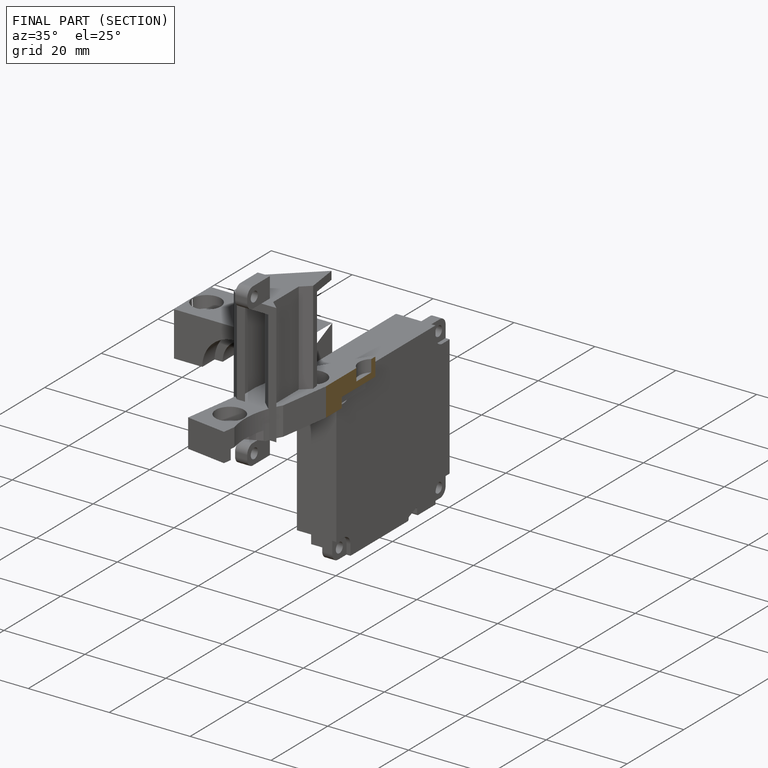
[diagram: finished part — half-section view (interior)]
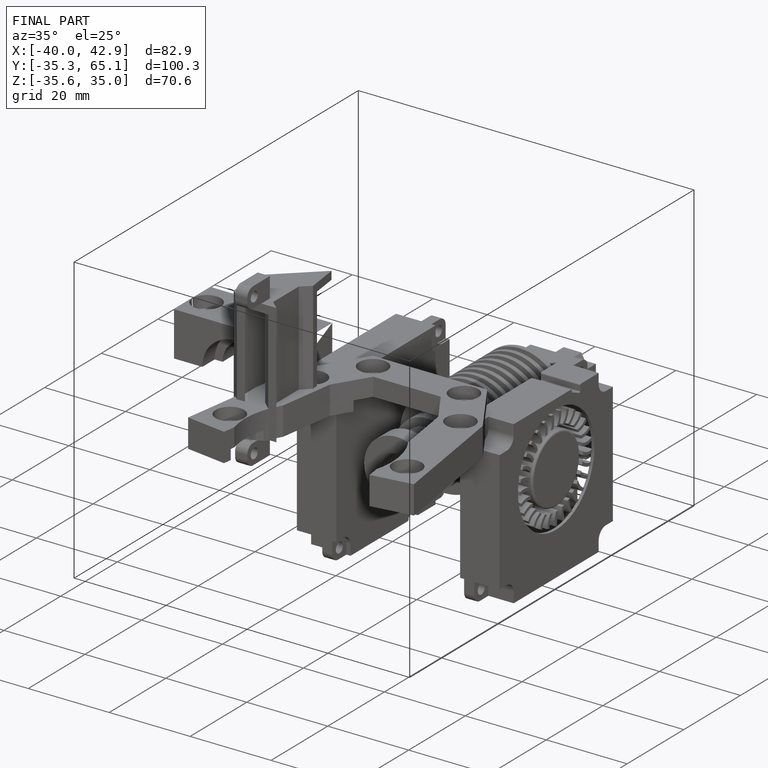
[diagram: finished part — iso view with bounding-box wireframe]
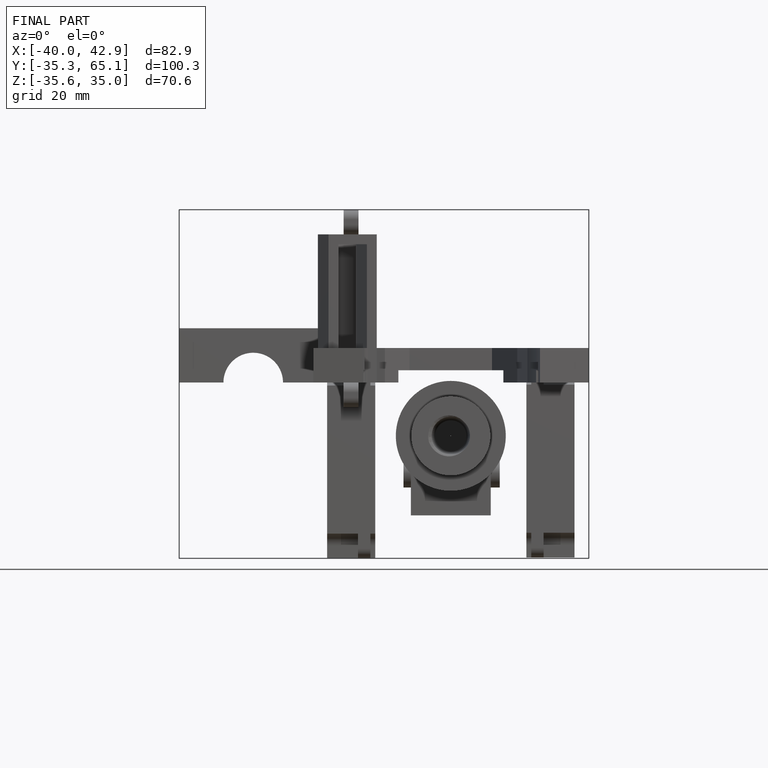
[diagram: finished part — front view with bounding-box wireframe]
